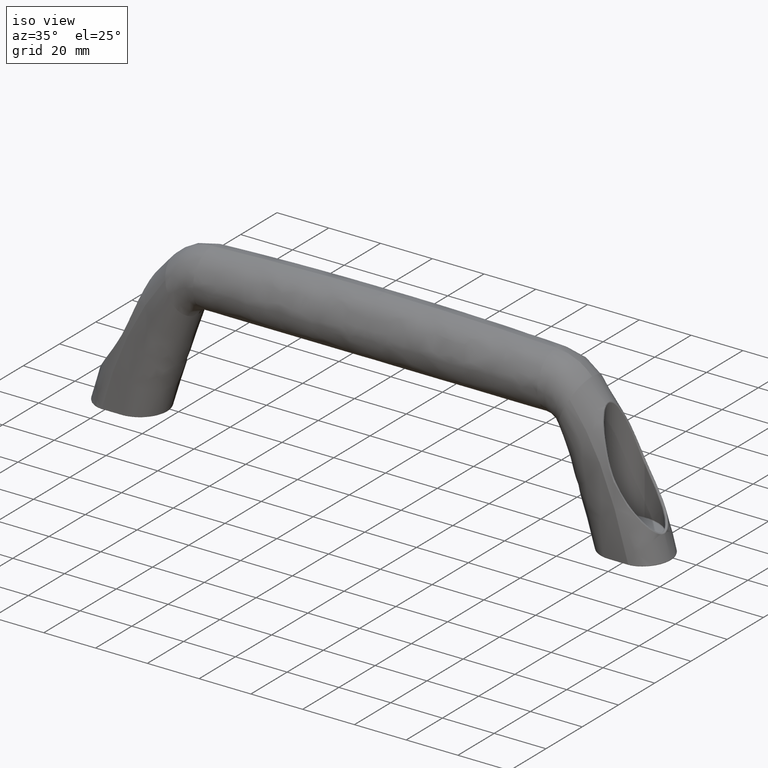
[diagram: clean part render]
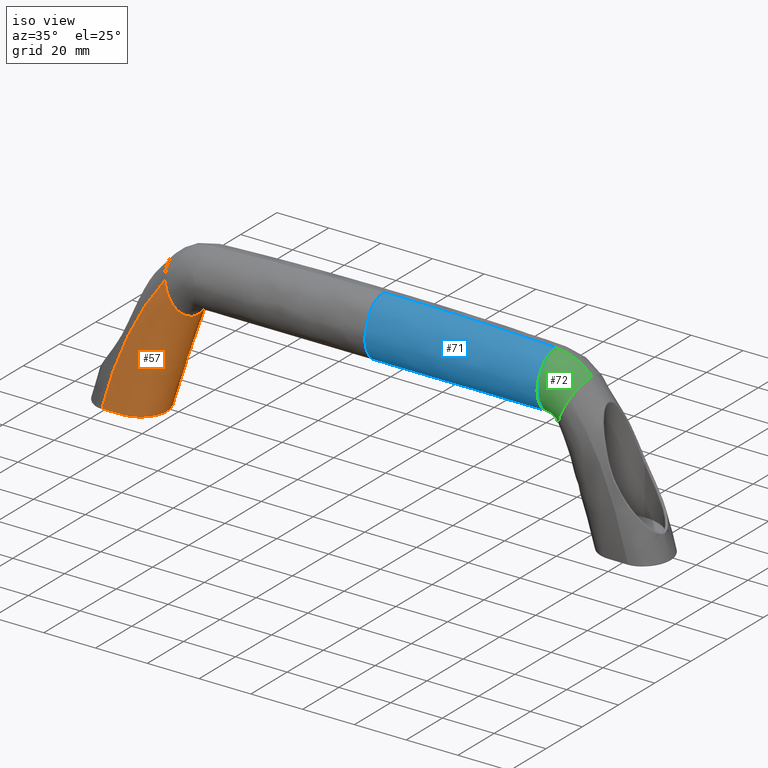
[diagram: same view with three faces highlighted in distinct colors, each labeled with its STEP entity id]
A machine part, iso view with three faces highlighted in distinct colors.
Their STEP definitions:

[orange] entity #57 — the highlighted face is a freeform B-spline surface patch.
#57=ADVANCED_FACE('',(#263),#262,.T.);
#262=( BOUNDED_SURFACE() B_SPLINE_SURFACE( 2,3,((#2288,#2289,#2290,#2291,#2292,#2293,#2294,#2295,#2296,#2297),(#2298,#2299,#2300,#2301,#2302,#2303,#2304,#2305,#2306,#2307),(#2308,#2309,#2310,#2311,#2312,#2313,#2314,#2315,#2316,#2317),(#2318,#2319,#2320,#2321,#2322,#2323,#2324,#2325,#2326,#2327),(#2328,#2329,#2330,#2331,#2332,#2333,#2334,#2335,#2336,#2337),(#2338,#2339,#2340,#2341,#2342,#2343,#2344,#2345,#2346,#2347),(#2348,#2349,#2350,#2351,#2352,#2353,#2354,#2355,#2356,#2357),(#2358,#2359,#2360,#2361,#2362,#2363,#2364,#2365,#2366,#2367),(#2368,#2369,#2370,#2371,#2372,#2373,#2374,#2375,#2376,#2377),(#2378,#2379,#2380,#2381,#2382,#2383,#2384,#2385,#2386,#2387),(#2388,#2389,#2390,#2391,#2392,#2393,#2394,#2395,#2396,#2397),(#2398,#2399,#2400,#2401,#2402,#2403,#2404,#2405,#2406,#2407),(#2408,#2409,#2410,#2411,#2412,#2413,#2414,#2415,#2416,#2417)), .UNSPECIFIED.,.F.,.F.,.F.) B_SPLINE_SURFACE_WITH_KNOTS((3,2,2,2,2,2,3),(4,2,2,2,4),(2.69771640007E+01,3.44136556726E+01,3.89422874588E+01,5.09074109169E+01,6.28725343748E+01,6.74011661612E+01,7.48376578329E+01),(0.00000000000E+00,1.29617204070E+01,2.59234408140E+01,3.88851612209E+01,5.18468816279E+01), .UNSPECIFIED. ) GEOMETRIC_REPRESENTATION_ITEM() RATIONAL_B_SPLINE_SURFACE(((1.00000000000E+00,1.00000000000E+00,1.00000000000E+00,1.00000000000E+00,1.00000000000E+00,1.00000000000E+00,1.00000000000E+00,1.00000000000E+00,1.00000000000E+00,1.00000000000E+00),(1.00000000000E+00,1.00000000000E+00,9.94848743683E-01,9.79394974732E-01,9.69092462098E-01,9.48487436831E-01,9.38184924197E-01,9.22731155246E-01,9.17579898929E-01,9.17579898929E-01),(1.00000000000E+00,1.00000000000E+00,9.96100643144E-01,9.84402572575E-01,9.76603858863E-01,9.61006431439E-01,9.53207717726E-01,9.41509647158E-01,9.37610290302E-01,9.37610290302E-01),(9.19581349364E-01,9.19581349364E-01,9.21470532682E-01,9.27138082637E-01,9.30916449273E-01,9.38473182546E-01,9.42251549182E-01,9.47919099136E-01,9.49808282454E-01,9.49808282454E-01),(8.83323225191E-01,8.83323225191E-01,8.90615523617E-01,9.12492418893E-01,9.27077015745E-01,9.56246209447E-01,9.70830806298E-01,9.92707701574E-01,1.00000000000E+00,1.00000000000E+00),(7.87525431822E-01,7.87525431822E-01,7.92516853670E-01,8.07491119213E-01,8.17473962908E-01,8.37439650298E-01,8.47422493993E-01,8.62396759536E-01,8.67388181384E-01,8.67388181384E-01),(1.00000000000E+00,1.00000000000E+00,1.00000000000E+00,1.00000000000E+00,1.00000000000E+00,1.00000000000E+00,1.00000000000E+00,1.00000000000E+00,1.00000000000E+00,1.00000000000E+00),(7.87525431827E-01,7.87525431827E-01,7.92516853674E-01,8.07491119216E-01,8.17473962911E-01,8.37439650300E-01,8.47422493994E-01,8.62396759536E-01,8.67388181384E-01,8.67388181384E-01),(8.83323225187E-01,8.83323225187E-01,8.90615523613E-01,9.12492418890E-01,9.27077015742E-01,9.56246209445E-01,9.70830806297E-01,9.92707701574E-01,1.00000000000E+00,1.00000000000E+00),(9.19581349360E-01,9.19581349360E-01,9.21470532678E-01,9.27138082633E-01,9.30916449269E-01,9.38473182542E-01,9.42251549179E-01,9.47919099133E-01,9.49808282452E-01,9.49808282452E-01),(1.00000000000E+00,1.00000000000E+00,9.96100643144E-01,9.84402572575E-01,9.76603858863E-01,9.61006431438E-01,9.53207717725E-01,9.41509647157E-01,9.37610290300E-01,9.37610290300E-01),(1.00000000000E+00,1.00000000000E+00,9.94848743683E-01,9.79394974733E-01,9.69092462099E-01,9.48487436832E-01,9.38184924199E-01,9.22731155249E-01,9.17579898932E-01,9.17579898932E-01),(1.00000000000E+00,1.00000000000E+00,1.00000000000E+00,1.00000000000E+00,1.00000000000E+00,1.00000000000E+00,1.00000000000E+00,1.00000000000E+00,1.00000000000E+00,1.00000000000E+00))) REPRESENTATION_ITEM('') SURFACE() );
#263=FACE_OUTER_BOUND('',#2418,.T.);
#2288=CARTESIAN_POINT('',(-1.96736334052E+02,2.14999780576E+01,1.80000213500E+01));
#2289=CARTESIAN_POINT('',(-1.95552521277E+02,2.14999780576E+01,2.25100063252E+01));
#2290=CARTESIAN_POINT('',(-1.94258962500E+02,2.15843471136E+01,2.69730979278E+01));
#2291=CARTESIAN_POINT('',(-1.91309206319E+02,2.18374542817E+01,3.58364975539E+01));
#2292=CARTESIAN_POINT('',(-1.89649131656E+02,2.20061923938E+01,4.02367312169E+01));
#2293=CARTESIAN_POINT('',(-1.85825658026E+02,2.23436686178E+01,4.88972462214E+01));
#2294=CARTESIAN_POINT('',(-1.83658187640E+02,2.25124067299E+01,5.31555216734E+01));
#2295=CARTESIAN_POINT('',(-1.78765596982E+02,2.27655138979E+01,6.13680995334E+01));
#2296=CARTESIAN_POINT('',(-1.76038533025E+02,2.28498829540E+01,6.53200033302E+01));
#2297=CARTESIAN_POINT('',(-1.73080688355E+02,2.28498829540E+01,6.90212025126E+01));
#2298=CARTESIAN_POINT('',(-1.93018088216E+02,2.14999780576E+01,1.80000213500E+01));
#2299=CARTESIAN_POINT('',(-1.91870480865E+02,2.14999780576E+01,2.22206845738E+01));
#2300=CARTESIAN_POINT('',(-1.90629917047E+02,2.14777214230E+01,2.64316144512E+01));
#2301=CARTESIAN_POINT('',(-1.87891242090E+02,2.14095467789E+01,3.47503076068E+01));
#2302=CARTESIAN_POINT('',(-1.86374341244E+02,2.13628890644E+01,3.88987821552E+01));
#2303=CARTESIAN_POINT('',(-1.82956940292E+02,2.12665328465E+01,4.70789526541E+01));
#2304=CARTESIAN_POINT('',(-1.81047198428E+02,2.12167675593E+01,5.11077946969E+01));
#2305=CARTESIAN_POINT('',(-1.76759956941E+02,2.11400359738E+01,5.89497631780E+01));
#2306=CARTESIAN_POINT('',(-1.74397471350E+02,2.11138844212E+01,6.27170398317E+01));
#2307=CARTESIAN_POINT('',(-1.71826009837E+02,2.11138844212E+01,6.62973823474E+01));
#2308=CARTESIAN_POINT('',(-1.89299842381E+02,2.14999780576E+01,1.80000213500E+01));
#2309=CARTESIAN_POINT('',(-1.88188947531E+02,2.14999780576E+01,2.19276414824E+01));
#2310=CARTESIAN_POINT('',(-1.86994830645E+02,2.15058117925E+01,2.58462857459E+01));
#2311=CARTESIAN_POINT('',(-1.84404930534E+02,2.15235902963E+01,3.35949703799E+01));
#2312=CARTESIAN_POINT('',(-1.82996365101E+02,2.15356792506E+01,3.74534904843E+01));
#2313=CARTESIAN_POINT('',(-1.79905858469E+02,2.15604457813E+01,4.50710894178E+01));
#2314=CARTESIAN_POINT('',(-1.78218908750E+02,2.15731329895E+01,4.88283620475E+01));
#2315=CARTESIAN_POINT('',(-1.74528122874E+02,2.15925578918E+01,5.61858888881E+01));
#2316=CARTESIAN_POINT('',(-1.72534845966E+02,2.15991405723E+01,5.97549700186E+01));
#2317=CARTESIAN_POINT('',(-1.70399827133E+02,2.15991405723E+01,6.32012384760E+01));
#2318=CARTESIAN_POINT('',(-1.87083016354E+02,2.14999780576E+01,1.80000213500E+01));
#2319=CARTESIAN_POINT('',(-1.85994532794E+02,2.14999780576E+01,2.17502374855E+01));
#2320=CARTESIAN_POINT('',(-1.84841559781E+02,2.15247576094E+01,2.54680086154E+01));
#2321=CARTESIAN_POINT('',(-1.82349728417E+02,2.15984903600E+01,3.28800209477E+01));
#2322=CARTESIAN_POINT('',(-1.81015064248E+02,2.16471467545E+01,3.65600166033E+01));
#2323=CARTESIAN_POINT('',(-1.78123827385E+02,2.17432841768E+01,4.38488730899E+01));
#2324=CARTESIAN_POINT('',(-1.76567197194E+02,2.17907746308E+01,4.74573987394E+01));
#2325=CARTESIAN_POINT('',(-1.73228498355E+02,2.18613004556E+01,5.45314426063E+01));
#2326=CARTESIAN_POINT('',(-1.71440483275E+02,2.18846220279E+01,5.80101366137E+01));
#2327=CARTESIAN_POINT('',(-1.69560788384E+02,2.18846220279E+01,6.13797434629E+01));
#2328=CARTESIAN_POINT('',(-1.85055384124E+02,2.23960947750E+01,1.80000213500E+01));
#2329=CARTESIAN_POINT('',(-1.83987560045E+02,2.23960947750E+01,2.15878405187E+01));
#2330=CARTESIAN_POINT('',(-1.82876537377E+02,2.24339505027E+01,2.51210277126E+01));
#2331=CARTESIAN_POINT('',(-1.80486859079E+02,2.25438873399E+01,3.22311802647E+01));
#2332=CARTESIAN_POINT('',(-1.79227687003E+02,2.26142960561E+01,3.57538238705E+01));
#2333=CARTESIAN_POINT('',(-1.76534777632E+02,2.27486702772E+01,4.27608275864E+01));
#2334=CARTESIAN_POINT('',(-1.75103894805E+02,2.28128293722E+01,4.62451121908E+01));
#2335=CARTESIAN_POINT('',(-1.72089154328E+02,2.29055332336E+01,5.30851144066E+01));
#2336=CARTESIAN_POINT('',(-1.70486417245E+02,2.29355331550E+01,5.64895283668E+01));
#2337=CARTESIAN_POINT('',(-1.68829556834E+02,2.29355331550E+01,5.97922904131E+01));
#2338=CARTESIAN_POINT('',(-1.78799842381E+02,2.51607458043E+01,1.80000213500E+01));
#2339=CARTESIAN_POINT('',(-1.77793496805E+02,2.51607458043E+01,2.10972639229E+01));
#2340=CARTESIAN_POINT('',(-1.76795383280E+02,2.52165121103E+01,2.41694231914E+01));
#2341=CARTESIAN_POINT('',(-1.74781133443E+02,2.53796744653E+01,3.03693965305E+01));
#2342=CARTESIAN_POINT('',(-1.73776952357E+02,2.54851285202E+01,3.34604018067E+01));
#2343=CARTESIAN_POINT('',(-1.71762403351E+02,2.56884941306E+01,3.96613249638E+01));
#2344=CARTESIAN_POINT('',(-1.70752179656E+02,2.57865833910E+01,4.27707956391E+01));
#2345=CARTESIAN_POINT('',(-1.68737503542E+02,2.59294593383E+01,4.89717193313E+01));
#2346=CARTESIAN_POINT('',(-1.67721990840E+02,2.59759884065E+01,5.20972164917E+01));
#2347=CARTESIAN_POINT('',(-1.66713986118E+02,2.59759884065E+01,5.51995329124E+01));
#2348=CARTESIAN_POINT('',(-1.78799842381E+02,3.19999780576E+01,1.80000213500E+01));
#2349=CARTESIAN_POINT('',(-1.77792644422E+02,3.19999780576E+01,2.10998872885E+01));
#2350=CARTESIAN_POINT('',(-1.76785513364E+02,3.19999780576E+01,2.41997821783E+01));
#2351=CARTESIAN_POINT('',(-1.74771286867E+02,3.19999780576E+01,3.03996502181E+01));
#2352=CARTESIAN_POINT('',(-1.73764189475E+02,3.19999780576E+01,3.34996227389E+01));
#2353=CARTESIAN_POINT('',(-1.71749948094E+02,3.19999780576E+01,3.96996090350E+01));
#2354=CARTESIAN_POINT('',(-1.70742802448E+02,3.19999780576E+01,4.27996210721E+01));
#2355=CARTESIAN_POINT('',(-1.68728437085E+02,3.19999780576E+01,4.89996166172E+01));
#2356=CARTESIAN_POINT('',(-1.67721217032E+02,3.19999780576E+01,5.20995983440E+01));
#2357=CARTESIAN_POINT('',(-1.66713986118E+02,3.19999780576E+01,5.51995329124E+01));
#2358=CARTESIAN_POINT('',(-1.78799842381E+02,3.88392103107E+01,1.80000213500E+01));
#2359=CARTESIAN_POINT('',(-1.77793496805E+02,3.88392103107E+01,2.10972639229E+01));
#2360=CARTESIAN_POINT('',(-1.76795383280E+02,3.87834440047E+01,2.41694231914E+01));
#2361=CARTESIAN_POINT('',(-1.74781133443E+02,3.86202816498E+01,3.03693965305E+01));
#2362=CARTESIAN_POINT('',(-1.73776952357E+02,3.85148275949E+01,3.34604018067E+01));
#2363=CARTESIAN_POINT('',(-1.71762403351E+02,3.83114619846E+01,3.96613249638E+01));
#2364=CARTESIAN_POINT('',(-1.70752179656E+02,3.82133727242E+01,4.27707956391E+01));
#2365=CARTESIAN_POINT('',(-1.68737503542E+02,3.80704967770E+01,4.89717193313E+01));
#2366=CARTESIAN_POINT('',(-1.67721990840E+02,3.80239677088E+01,5.20972164917E+01));
#2367=CARTESIAN_POINT('',(-1.66713986118E+02,3.80239677088E+01,5.51995329124E+01));
#2368=CARTESIAN_POINT('',(-1.85055384124E+02,4.16038613401E+01,1.80000213500E+01));
#2369=CARTESIAN_POINT('',(-1.83987560045E+02,4.16038613401E+01,2.15878405187E+01));
#2370=CARTESIAN_POINT('',(-1.82876537376E+02,4.15660056124E+01,2.51210277126E+01));
#2371=CARTESIAN_POINT('',(-1.80486859079E+02,4.14560687753E+01,3.22311802646E+01));
#2372=CARTESIAN_POINT('',(-1.79227687003E+02,4.13856600591E+01,3.57538238704E+01));
#2373=CARTESIAN_POINT('',(-1.76534777632E+02,4.12512858380E+01,4.27608275864E+01));
#2374=CARTESIAN_POINT('',(-1.75103894804E+02,4.11871267430E+01,4.62451121908E+01));
#2375=CARTESIAN_POINT('',(-1.72089154328E+02,4.10944228817E+01,5.30851144066E+01));
#2376=CARTESIAN_POINT('',(-1.70486417245E+02,4.10644229602E+01,5.64895283668E+01));
#2377=CARTESIAN_POINT('',(-1.68829556834E+02,4.10644229602E+01,5.97922904131E+01));
#2378=CARTESIAN_POINT('',(-1.87083016354E+02,4.24999780576E+01,1.80000213500E+01));
#2379=CARTESIAN_POINT('',(-1.85994532794E+02,4.24999780576E+01,2.17502374854E+01));
#2380=CARTESIAN_POINT('',(-1.84841559780E+02,4.24751985058E+01,2.54680086154E+01));
#2381=CARTESIAN_POINT('',(-1.82349728417E+02,4.24014657552E+01,3.28800209476E+01));
#2382=CARTESIAN_POINT('',(-1.81015064248E+02,4.23528093607E+01,3.65600166032E+01));
#2383=CARTESIAN_POINT('',(-1.78123827385E+02,4.22566719385E+01,4.38488730899E+01));
#2384=CARTESIAN_POINT('',(-1.76567197195E+02,4.22091814845E+01,4.74573987394E+01));
#2385=CARTESIAN_POINT('',(-1.73228498355E+02,4.21386556597E+01,5.45314426064E+01));
#2386=CARTESIAN_POINT('',(-1.71440483275E+02,4.21153340874E+01,5.80101366138E+01));
#2387=CARTESIAN_POINT('',(-1.69560788384E+02,4.21153340874E+01,6.13797434630E+01));
#2388=CARTESIAN_POINT('',(-1.89299842381E+02,4.24999780576E+01,1.80000213500E+01));
#2389=CARTESIAN_POINT('',(-1.88188947531E+02,4.24999780576E+01,2.19276414824E+01));
#2390=CARTESIAN_POINT('',(-1.86994830645E+02,4.24941443226E+01,2.58462857459E+01));
#2391=CARTESIAN_POINT('',(-1.84404930534E+02,4.24763658189E+01,3.35949703799E+01));
#2392=CARTESIAN_POINT('',(-1.82996365101E+02,4.24642768646E+01,3.74534904844E+01));
#2393=CARTESIAN_POINT('',(-1.79905858469E+02,4.24395103339E+01,4.50710894179E+01));
#2394=CARTESIAN_POINT('',(-1.78218908750E+02,4.24268231258E+01,4.88283620476E+01));
#2395=CARTESIAN_POINT('',(-1.74528122874E+02,4.24073982234E+01,5.61858888883E+01));
#2396=CARTESIAN_POINT('',(-1.72534845966E+02,4.24008155429E+01,5.97549700188E+01));
#2397=CARTESIAN_POINT('',(-1.70399827134E+02,4.24008155429E+01,6.32012384762E+01));
#2398=CARTESIAN_POINT('',(-1.93018088216E+02,4.24999780576E+01,1.80000213500E+01));
#2399=CARTESIAN_POINT('',(-1.91870480865E+02,4.24999780576E+01,2.22206845737E+01));
#2400=CARTESIAN_POINT('',(-1.90629917047E+02,4.25222346922E+01,2.64316144511E+01));
#2401=CARTESIAN_POINT('',(-1.87891242090E+02,4.25904093363E+01,3.47503076067E+01));
#2402=CARTESIAN_POINT('',(-1.86374341244E+02,4.26370670508E+01,3.88987821551E+01));
#2403=CARTESIAN_POINT('',(-1.82956940292E+02,4.27334232686E+01,4.70789526541E+01));
#2404=CARTESIAN_POINT('',(-1.81047198428E+02,4.27831885558E+01,5.11077946970E+01));
#2405=CARTESIAN_POINT('',(-1.76759956941E+02,4.28599201414E+01,5.89497631781E+01));
#2406=CARTESIAN_POINT('',(-1.74397471350E+02,4.28860716939E+01,6.27170398318E+01));
#2407=CARTESIAN_POINT('',(-1.71826009837E+02,4.28860716939E+01,6.62973823475E+01));
#2408=CARTESIAN_POINT('',(-1.96736334052E+02,4.24999780576E+01,1.80000213500E+01));
#2409=CARTESIAN_POINT('',(-1.95552521277E+02,4.24999780576E+01,2.25100063252E+01));
#2410=CARTESIAN_POINT('',(-1.94258962500E+02,4.24156090016E+01,2.69730979277E+01));
#2411=CARTESIAN_POINT('',(-1.91309206319E+02,4.21625018335E+01,3.58364975539E+01));
#2412=CARTESIAN_POINT('',(-1.89649131656E+02,4.19937637215E+01,4.02367312168E+01));
#2413=CARTESIAN_POINT('',(-1.85825658026E+02,4.16562874974E+01,4.88972462213E+01));
#2414=CARTESIAN_POINT('',(-1.83658187640E+02,4.14875493854E+01,5.31555216734E+01));
#2415=CARTESIAN_POINT('',(-1.78765596982E+02,4.12344422173E+01,6.13680995334E+01));
#2416=CARTESIAN_POINT('',(-1.76038533025E+02,4.11500731613E+01,6.53200033302E+01));
#2417=CARTESIAN_POINT('',(-1.73080688355E+02,4.11500731613E+01,6.90212025126E+01));
#2418=EDGE_LOOP('',(#4634,#4635,#4636,#4637,#4638));
#4634=ORIENTED_EDGE('',*,*,#4815,.F.);
#4635=ORIENTED_EDGE('',*,*,#4824,.F.);
#4636=ORIENTED_EDGE('',*,*,#4829,.T.);
#4637=ORIENTED_EDGE('',*,*,#4790,.F.);
#4638=ORIENTED_EDGE('',*,*,#4785,.F.);
#4785=EDGE_CURVE('',#4925,#4932,#4933,.T.);
#4790=EDGE_CURVE('',#4932,#4966,#4967,.T.);
#4815=EDGE_CURVE('',#5126,#4925,#5133,.T.);
#4824=EDGE_CURVE('',#5184,#5126,#5191,.T.);
#4829=EDGE_CURVE('',#5184,#4966,#5225,.T.);
#4925=VERTEX_POINT('',#5739);
#4932=VERTEX_POINT('',#5744);
#4933=(BOUNDED_CURVE() B_SPLINE_CURVE(3,(#5745,#5746,#5747,#5748,#5749,#5750,#5751,#5752,#5753,#5754,#5755,#5756,#5757),.UNSPECIFIED.,.F.,.F.) B_SPLINE_CURVE_WITH_KNOTS((4,3,3,3,4),(0.00000000000E+00,1.43215665804E+01,2.86206188286E+01,4.27354945419E+01,5.65111563791E+01),.UNSPECIFIED.) CURVE() GEOMETRIC_REPRESENTATION_ITEM() RATIONAL_B_SPLINE_CURVE((1.00000000000E+00,1.00000000000E+00,1.00000000000E+00,1.00000000000E+00,1.00000000000E+00,1.00000000000E+00,1.00000000000E+00,1.00000000000E+00,1.00000000000E+00,1.00000000000E+00,1.00000000000E+00,1.00000000000E+00,1.00000000000E+00)) REPRESENTATION_ITEM('') );
#4966=VERTEX_POINT('',#5800);
#4967=(BOUNDED_CURVE() B_SPLINE_CURVE(3,(#5801,#5802,#5803,#5804,#5805,#5806,#5807,#5808,#5809,#5810,#5811,#5812,#5813,#5814,#5815,#5816,#5817,#5818,#5819,#5820,#5821,#5822,#5823,#5824,#5825,#5826,#5827,#5828,#5829,#5830,#5831,#5832,#5833,#5834,#5835,#5836,#5837,#5838,#5839,#5840,#5841,#5842,#5843,#5844,#5845,#5846,#5847,#5848,#5849,#5850,#5851,#5852,#5853,#5854,#5855,#5856,#5857,#5858,#5859,#5860),.UNSPECIFIED.,.F.,.F.) B_SPLINE_CURVE_WITH_KNOTS((4,2,2,2,2,2,2,2,2,2,2,2,1,2,2,2,2,2,2,2,2,2,2,2,2,2,2,2,2,1,4),(0.00000000000E+00,5.98646604156E+00,6.73477429675E+00,7.48308255194E+00,8.97969906233E+00,1.19729320831E+01,1.34695485935E+01,1.49661651039E+01,1.64627816143E+01,1.79593981247E+01,1.87077063799E+01,1.94560146350E+01,2.09526311454E+01,2.24492476559E+01,2.31975559111E+01,2.39458641663E+01,2.54424806766E+01,2.69390971870E+01,2.84357136974E+01,2.99323302077E+01,3.29255632286E+01,3.36738714838E+01,3.44221797390E+01,3.59187962493E+01,3.66671045045E+01,3.74154127597E+01,3.89120292701E+01,4.04086457805E+01,4.11569540357E+01,4.19052622909E+01,4.78917283324E+01),.UNSPECIFIED.) CURVE() GEOMETRIC_REPRESENTATION_ITEM() RATIONAL_B_SPLINE_CURVE((1.00000000000E+00,1.00000000000E+00,1.00000000000E+00,1.00000000000E+00,1.00000000000E+00,1.00000000000E+00,1.00000000000E+00,1.00000000000E+00,1.00000000000E+00,1.00000000000E+00,1.00000000000E+00,1.00000000000E+00,1.00000000000E+00,1.00000000000E+00,1.00000000000E+00,1.00000000000E+00,1.00000000000E+00,1.00000000000E+00,1.00000000000E+00,1.00000000000E+00,1.00000000000E+00,1.00000000000E+00,1.00000000000E+00,1.00000000000E+00,1.00000000000E+00,1.00000000000E+00,1.00000000000E+00,1.00000000000E+00,1.00000000000E+00,1.00000000000E+00,1.00000000000E+00,1.00000000000E+00,1.00000000000E+00,1.00000000000E+00,1.00000000000E+00,1.00000000000E+00,1.00000000000E+00,1.00000000000E+00,1.00000000000E+00,1.00000000000E+00,1.00000000000E+00,1.00000000000E+00,1.00000000000E+00,1.00000000000E+00,1.00000000000E+00,1.00000000000E+00,1.00000000000E+00,1.00000000000E+00,1.00000000000E+00,1.00000000000E+00,1.00000000000E+00,1.00000000000E+00,1.00000000000E+00,1.00000000000E+00,1.00000000000E+00,1.00000000000E+00,1.00000000000E+00,1.00000000000E+00,1.00000000000E+00,1.00000000000E+00)) REPRESENTATION_ITEM('') );
#5126=VERTEX_POINT('',#6352);
#5133=(BOUNDED_CURVE() B_SPLINE_CURVE(2,(#6369,#6370,#6371,#6372,#6373),.UNSPECIFIED.,.F.,.F.) B_SPLINE_CURVE_WITH_KNOTS((3,2,3),(-2.37224876083E+01,-1.17982073668E+01,0.00000000000E+00),.UNSPECIFIED.) CURVE() GEOMETRIC_REPRESENTATION_ITEM() RATIONAL_B_SPLINE_CURVE((1.00000000000E+00,8.67388181384E-01,1.00000000000E+00,8.67388181384E-01,1.00000000000E+00)) REPRESENTATION_ITEM('') );
#5184=VERTEX_POINT('',#6530);
#5191=(BOUNDED_CURVE() B_SPLINE_CURVE(2,(#6536,#6537,#6538,#6539,#6540),.UNSPECIFIED.,.F.,.F.) B_SPLINE_CURVE_WITH_KNOTS((3,2,3),(-2.37224876083E+01,-1.19242802415E+01,0.00000000000E+00),.UNSPECIFIED.) CURVE() GEOMETRIC_REPRESENTATION_ITEM() RATIONAL_B_SPLINE_CURVE((1.00000000000E+00,8.67388181384E-01,1.00000000000E+00,8.67388181384E-01,1.00000000000E+00)) REPRESENTATION_ITEM('') );
#5225=(BOUNDED_CURVE() B_SPLINE_CURVE(3,(#6561,#6562,#6563,#6564,#6565,#6566,#6567,#6568,#6569,#6570,#6571,#6572,#6573),.UNSPECIFIED.,.F.,.F.) B_SPLINE_CURVE_WITH_KNOTS((4,3,3,3,4),(0.00000000000E+00,1.43215665804E+01,2.86206188287E+01,4.27354945419E+01,5.65111564199E+01),.UNSPECIFIED.) CURVE() GEOMETRIC_REPRESENTATION_ITEM() RATIONAL_B_SPLINE_CURVE((1.00000000000E+00,1.00000000000E+00,1.00000000000E+00,1.00000000000E+00,1.00000000000E+00,1.00000000000E+00,1.00000000000E+00,1.00000000000E+00,1.00000000000E+00,1.00000000000E+00,1.00000000000E+00,1.00000000000E+00,1.00000000000E+00)) REPRESENTATION_ITEM('') );
#5739=CARTESIAN_POINT('',(-1.73080688355E+02,4.11500731613E+01,6.90212025126E+01));
#5744=CARTESIAN_POINT('',(-1.96683727106E+02,4.24999228097E+01,1.82001325519E+01));
#5745=CARTESIAN_POINT('',(-1.73080688355E+02,4.11500731613E+01,6.90212025126E+01));
#5746=CARTESIAN_POINT('',(-1.76038533025E+02,4.11500731613E+01,6.53200033302E+01));
#5747=CARTESIAN_POINT('',(-1.78765596982E+02,4.12344422173E+01,6.13680995334E+01));
#5748=CARTESIAN_POINT('',(-1.81211892311E+02,4.13609958014E+01,5.72618106034E+01));
#5749=CARTESIAN_POINT('',(-1.83658187640E+02,4.14875493854E+01,5.31555216734E+01));
#5750=CARTESIAN_POINT('',(-1.85825658026E+02,4.16562874974E+01,4.88972462213E+01));
#5751=CARTESIAN_POINT('',(-1.87737394841E+02,4.18250256095E+01,4.45669887191E+01));
#5752=CARTESIAN_POINT('',(-1.89649131656E+02,4.19937637215E+01,4.02367312168E+01));
#5753=CARTESIAN_POINT('',(-1.91309206319E+02,4.21625018335E+01,3.58364975539E+01));
#5754=CARTESIAN_POINT('',(-1.92784084410E+02,4.22890554176E+01,3.14047977408E+01));
#5755=CARTESIAN_POINT('',(-1.94237145357E+02,4.24137369570E+01,2.70386538724E+01));
#5756=CARTESIAN_POINT('',(-1.95514211650E+02,4.24974727674E+01,2.26420400718E+01));
#5757=CARTESIAN_POINT('',(-1.96683727106E+02,4.24999228097E+01,1.82001325519E+01));
#5800=CARTESIAN_POINT('',(-1.96683727116E+02,2.15000333055E+01,1.82001325126E+01));
#5801=CARTESIAN_POINT('',(-1.96683727106E+02,4.24999228097E+01,1.82001325519E+01));
#5802=CARTESIAN_POINT('',(-1.94684633369E+02,4.24999565219E+01,1.82000650783E+01));
#5803=CARTESIAN_POINT('',(-1.92685539693E+02,4.24999788576E+01,1.82000201746E+01));
#5804=CARTESIAN_POINT('',(-1.90436559451E+02,4.24999779337E+01,1.82000215189E+01));
#5805=CARTESIAN_POINT('',(-1.90186672759E+02,4.24999774578E+01,1.82000224111E+01));
#5806=CARTESIAN_POINT('',(-1.89686899381E+02,4.24999756911E+01,1.82000258163E+01));
#5807=CARTESIAN_POINT('',(-1.89437003769E+02,4.25011612317E+01,1.82010766608E+01));
#5808=CARTESIAN_POINT('',(-1.88687374241E+02,4.24971455189E+01,1.81970325724E+01));
#5809=CARTESIAN_POINT('',(-1.88184713663E+02,4.24583162578E+01,1.81942748566E+01));
#5810=CARTESIAN_POINT('',(-1.86704049772E+02,4.22365926328E+01,1.81860273947E+01));
#5811=CARTESIAN_POINT('',(-1.85755192855E+02,4.19532173890E+01,1.81805775041E+01));
#5812=CARTESIAN_POINT('',(-1.84390062336E+02,4.13220621928E+01,1.81725689733E+01));
#5813=CARTESIAN_POINT('',(-1.83952877248E+02,4.10802494196E+01,1.81699757354E+01));
#5814=CARTESIAN_POINT('',(-1.83121731386E+02,4.05408184482E+01,1.81650068845E+01));
#5815=CARTESIAN_POINT('',(-1.82726268166E+02,4.02425040638E+01,1.81626224178E+01));
#5816=CARTESIAN_POINT('',(-1.81976126125E+02,3.95878738691E+01,1.81580735358E+01));
#5817=CARTESIAN_POINT('',(-1.81620255583E+02,3.92293933101E+01,1.81559016660E+01));
#5818=CARTESIAN_POINT('',(-1.80971857599E+02,3.84756973411E+01,1.81519295170E+01));
#5819=CARTESIAN_POINT('',(-1.80676366840E+02,3.80783344256E+01,1.81501113164E+01));
#5820=CARTESIAN_POINT('',(-1.80275820185E+02,3.74517840727E+01,1.81476411783E+01));
#5821=CARTESIAN_POINT('',(-1.80149446077E+02,3.72378306669E+01,1.81468607829E+01));
#5822=CARTESIAN_POINT('',(-1.79911245404E+02,3.67995281520E+01,1.81453884650E+01));
#5823=CARTESIAN_POINT('',(-1.79799022475E+02,3.65742414445E+01,1.81446940853E+01));
#5824=CARTESIAN_POINT('',(-1.79488752746E+02,3.58910759073E+01,1.81427729923E+01));
#5825=CARTESIAN_POINT('',(-1.79144006860E+02,3.49601078709E+01,1.81406349537E+01));
#5826=CARTESIAN_POINT('',(-1.78932930112E+02,3.39902090452E+01,1.81393241327E+01));
#5827=CARTESIAN_POINT('',(-1.78826251224E+02,3.32477482072E+01,1.81386615727E+01));
#5828=CARTESIAN_POINT('',(-1.78799388083E+02,3.29974300667E+01,1.81384947036E+01));
#5829=CARTESIAN_POINT('',(-1.78763859484E+02,3.24997062434E+01,1.81382740005E+01));
#5830=CARTESIAN_POINT('',(-1.78755021163E+02,3.22513208392E+01,1.81382190923E+01));
#5831=CARTESIAN_POINT('',(-1.78754778885E+02,3.15075671764E+01,1.81382175847E+01));
#5832=CARTESIAN_POINT('',(-1.78789517762E+02,3.10135945357E+01,1.81384334226E+01));
#5833=CARTESIAN_POINT('',(-1.78929310188E+02,3.00294029563E+01,1.81393016454E+01));
#5834=CARTESIAN_POINT('',(-1.79035705006E+02,2.95356790533E+01,1.81399623798E+01));
#5835=CARTESIAN_POINT('',(-1.79314433067E+02,2.85796162737E+01,1.81416918636E+01));
#5836=CARTESIAN_POINT('',(-1.79486544301E+02,2.81150487629E+01,1.81427592753E+01));
#5837=CARTESIAN_POINT('',(-1.79895301484E+02,2.72124469168E+01,1.81452902246E+01));
#5838=CARTESIAN_POINT('',(-1.80132695882E+02,2.67732311571E+01,1.81467584462E+01));
#5839=CARTESIAN_POINT('',(-1.80941432905E+02,2.55046836603E+01,1.81517460832E+01));
#5840=CARTESIAN_POINT('',(-1.81587138686E+02,2.47537898342E+01,1.81557140209E+01));
#5841=CARTESIAN_POINT('',(-1.82525603416E+02,2.39320297931E+01,1.81614057081E+01));
#5842=CARTESIAN_POINT('',(-1.82720815681E+02,2.37730461842E+01,1.81625861730E+01));
#5843=CARTESIAN_POINT('',(-1.83119614894E+02,2.34713962450E+01,1.81649888986E+01));
#5844=CARTESIAN_POINT('',(-1.83323363880E+02,2.33284766759E+01,1.81662121756E+01));
#5845=CARTESIAN_POINT('',(-1.83947359986E+02,2.29228906822E+01,1.81699429109E+01));
#5846=CARTESIAN_POINT('',(-1.84380293932E+02,2.26832837007E+01,1.81725110047E+01));
#5847=CARTESIAN_POINT('',(-1.85055080490E+02,2.23700137510E+01,1.81764705609E+01));
#5848=CARTESIAN_POINT('',(-1.85284256000E+02,2.22733090837E+01,1.81778080563E+01));
#5849=CARTESIAN_POINT('',(-1.85751292367E+02,2.20956860709E+01,1.81805173891E+01));
#5850=CARTESIAN_POINT('',(-1.85989765607E+02,2.20146529085E+01,1.81818926585E+01));
#5851=CARTESIAN_POINT('',(-1.86706959073E+02,2.17992630138E+01,1.81860016098E+01));
#5852=CARTESIAN_POINT('',(-1.87190776002E+02,2.16910164730E+01,1.81887378568E+01));
#5853=CARTESIAN_POINT('',(-1.88169492326E+02,2.15433928457E+01,1.81941906374E+01));
#5854=CARTESIAN_POINT('',(-1.88664391237E+02,2.15040127534E+01,1.81969071807E+01));
#5855=CARTESIAN_POINT('',(-1.89415343015E+02,2.14984063546E+01,1.82009604042E+01));
#5856=CARTESIAN_POINT('',(-1.89666226599E+02,2.14999805197E+01,1.82000259629E+01));
#5857=CARTESIAN_POINT('',(-1.90167476647E+02,2.14999787044E+01,1.82000224609E+01));
#5858=CARTESIAN_POINT('',(-1.92423101862E+02,2.14999743247E+01,1.82000142391E+01));
#5859=CARTESIAN_POINT('',(-1.94678727076E+02,2.14999994937E+01,1.82000648397E+01));
#5860=CARTESIAN_POINT('',(-1.96683727116E+02,2.15000333055E+01,1.82001325126E+01));
#6352=CARTESIAN_POINT('',(-1.66713986118E+02,3.19999780576E+01,5.51995329124E+01));
#6369=CARTESIAN_POINT('',(-1.66713986118E+02,3.19999780576E+01,5.51995329124E+01));
#6370=CARTESIAN_POINT('',(-1.66713986118E+02,3.80239677088E+01,5.51995329124E+01));
#6371=CARTESIAN_POINT('',(-1.68829556834E+02,4.10644229602E+01,5.97922904131E+01));
#6372=CARTESIAN_POINT('',(-1.70945127550E+02,4.41048782117E+01,6.43850479139E+01));
#6373=CARTESIAN_POINT('',(-1.73080688355E+02,4.11500731613E+01,6.90212025126E+01));
#6530=CARTESIAN_POINT('',(-1.73080688355E+02,2.28498829540E+01,6.90212025126E+01));
#6536=CARTESIAN_POINT('',(-1.73080688355E+02,2.28498829540E+01,6.90212025126E+01));
#6537=CARTESIAN_POINT('',(-1.70945127550E+02,1.98950779035E+01,6.43850479139E+01));
#6538=CARTESIAN_POINT('',(-1.68829556834E+02,2.29355331550E+01,5.97922904131E+01));
#6539=CARTESIAN_POINT('',(-1.66713986118E+02,2.59759884065E+01,5.51995329124E+01));
#6540=CARTESIAN_POINT('',(-1.66713986118E+02,3.19999780576E+01,5.51995329124E+01));
#6561=CARTESIAN_POINT('',(-1.73080688355E+02,2.28498829540E+01,6.90212025126E+01));
#6562=CARTESIAN_POINT('',(-1.76038533025E+02,2.28498829540E+01,6.53200033302E+01));
#6563=CARTESIAN_POINT('',(-1.78765596982E+02,2.27655138979E+01,6.13680995334E+01));
#6564=CARTESIAN_POINT('',(-1.81211892311E+02,2.26389603139E+01,5.72618106034E+01));
#6565=CARTESIAN_POINT('',(-1.83658187640E+02,2.25124067299E+01,5.31555216734E+01));
#6566=CARTESIAN_POINT('',(-1.85825658026E+02,2.23436686178E+01,4.88972462214E+01));
#6567=CARTESIAN_POINT('',(-1.87737394841E+02,2.21749305058E+01,4.45669887191E+01));
#6568=CARTESIAN_POINT('',(-1.89649131656E+02,2.20061923938E+01,4.02367312169E+01));
#6569=CARTESIAN_POINT('',(-1.91309206319E+02,2.18374542817E+01,3.58364975539E+01));
#6570=CARTESIAN_POINT('',(-1.92784084410E+02,2.17109006977E+01,3.14047977409E+01));
#6571=CARTESIAN_POINT('',(-1.94237145362E+02,2.15862191579E+01,2.70386538595E+01));
#6572=CARTESIAN_POINT('',(-1.95514211658E+02,2.15024833473E+01,2.26420400459E+01));
#6573=CARTESIAN_POINT('',(-1.96683727116E+02,2.15000333055E+01,1.82001325126E+01));

[blue] entity #71 — the highlighted face is a freeform B-spline surface patch.
#71=ADVANCED_FACE('',(#405),#404,.T.);
#404=( BOUNDED_SURFACE() B_SPLINE_SURFACE( 3,2,((#3916,#3917,#3918),(#3919,#3920,#3921),(#3922,#3923,#3924),(#3925,#3926,#3927),(#3928,#3929,#3930),(#3931,#3932,#3933),(#3934,#3935,#3936),(#3937,#3938,#3939),(#3940,#3941,#3942),(#3943,#3944,#3945),(#3946,#3947,#3948),(#3949,#3950,#3951),(#3952,#3953,#3954),(#3955,#3956,#3957),(#3958,#3959,#3960),(#3961,#3962,#3963),(#3964,#3965,#3966),(#3967,#3968,#3969),(#3970,#3971,#3972),(#3973,#3974,#3975),(#3976,#3977,#3978),(#3979,#3980,#3981),(#3982,#3983,#3984),(#3985,#3986,#3987),(#3988,#3989,#3990),(#3991,#3992,#3993),(#3994,#3995,#3996),(#3997,#3998,#3999),(#4000,#4001,#4002),(#4003,#4004,#4005),(#4006,#4007,#4008),(#4009,#4010,#4011),(#4012,#4013,#4014),(#4015,#4016,#4017),(#4018,#4019,#4020),(#4021,#4022,#4023),(#4024,#4025,#4026),(#4027,#4028,#4029),(#4030,#4031,#4032),(#4033,#4034,#4035),(#4036,#4037,#4038),(#4039,#4040,#4041),(#4042,#4043,#4044),(#4045,#4046,#4047),(#4048,#4049,#4050),(#4051,#4052,#4053),(#4054,#4055,#4056),(#4057,#4058,#4059)), .UNSPECIFIED.,.F.,.F.,.F.) B_SPLINE_SURFACE_WITH_KNOTS((4,2,2,2,2,2,2,2,2,2,2,2,2,2,2,2,2,2,2,2,2,2,2,4),(3,3),(-1.05471187339E-14,2.12223159148E+00,3.18334738723E+00,4.24446318297E+00,6.36669477446E+00,8.48892636594E+00,9.55004216168E+00,1.00806000596E+01,1.06111579574E+01,1.11417158553E+01,1.16722737532E+01,1.27333895489E+01,1.37945053447E+01,1.43250632425E+01,1.48556211404E+01,1.69778527319E+01,1.91000843234E+01,2.12223159149E+01,2.33445475063E+01,2.54667790978E+01,2.75890106893E+01,2.97112422808E+01,3.18334738723E+01,3.39557054638E+01),(-6.68064571995E+01,-3.00126156158E-01), .UNSPECIFIED. ) GEOMETRIC_REPRESENTATION_ITEM() RATIONAL_B_SPLINE_SURFACE(((1.00000000000E+00,9.99738862680E-01,1.00000000000E+00),(1.00000000000E+00,9.99738862680E-01,1.00000000000E+00),(1.00000000000E+00,9.99738862680E-01,1.00000000000E+00),(1.00000000000E+00,9.99738862680E-01,1.00000000000E+00),(1.00000000000E+00,9.99738862680E-01,1.00000000000E+00),(1.00000000000E+00,9.99738862680E-01,1.00000000000E+00),(1.00000000000E+00,9.99738862680E-01,1.00000000000E+00),(1.00000000000E+00,9.99738862680E-01,1.00000000000E+00),(1.00000000000E+00,9.99738862680E-01,1.00000000000E+00),(1.00000000000E+00,9.99738862680E-01,1.00000000000E+00),(1.00000000000E+00,9.99738862680E-01,1.00000000000E+00),(1.00000000000E+00,9.99738862680E-01,1.00000000000E+00),(1.00000000000E+00,9.99738862680E-01,1.00000000000E+00),(1.00000000000E+00,9.99738862680E-01,1.00000000000E+00),(1.00000000000E+00,9.99738862680E-01,1.00000000000E+00),(1.00000000000E+00,9.99738862680E-01,1.00000000000E+00),(1.00000000000E+00,9.99738862680E-01,1.00000000000E+00),(1.00000000000E+00,9.99738862680E-01,1.00000000000E+00),(1.00000000000E+00,9.99738862680E-01,1.00000000000E+00),(1.00000000000E+00,9.99738862680E-01,1.00000000000E+00),(1.00000000000E+00,9.99738862680E-01,1.00000000000E+00),(1.00000000000E+00,9.99738862680E-01,1.00000000000E+00),(1.00000000000E+00,9.99738862680E-01,1.00000000000E+00),(1.00000000000E+00,9.99738862680E-01,1.00000000000E+00),(1.00000000000E+00,9.99738862680E-01,1.00000000000E+00),(1.00000000000E+00,9.99738862680E-01,1.00000000000E+00),(1.00000000000E+00,9.99738862680E-01,1.00000000000E+00),(1.00000000000E+00,9.99738862680E-01,1.00000000000E+00),(1.00000000000E+00,9.99738862680E-01,1.00000000000E+00),(1.00000000000E+00,9.99738862680E-01,1.00000000000E+00),(1.00000000000E+00,9.99738862680E-01,1.00000000000E+00),(1.00000000000E+00,9.99738862680E-01,1.00000000000E+00),(1.00000000000E+00,9.99738862680E-01,1.00000000000E+00),(1.00000000000E+00,9.99738862680E-01,1.00000000000E+00),(1.00000000000E+00,9.99738862680E-01,1.00000000000E+00),(1.00000000000E+00,9.99738862680E-01,1.00000000000E+00),(1.00000000000E+00,9.99738862680E-01,1.00000000000E+00),(1.00000000000E+00,9.99738862680E-01,1.00000000000E+00),(1.00000000000E+00,9.99738862680E-01,1.00000000000E+00),(1.00000000000E+00,9.99738862680E-01,1.00000000000E+00),(1.00000000000E+00,9.99738862680E-01,1.00000000000E+00),(1.00000000000E+00,9.99738862680E-01,1.00000000000E+00),(1.00000000000E+00,9.99738862680E-01,1.00000000000E+00),(1.00000000000E+00,9.99738862680E-01,1.00000000000E+00),(1.00000000000E+00,9.99738862680E-01,1.00000000000E+00),(1.00000000000E+00,9.99738862680E-01,1.00000000000E+00),(1.00000000000E+00,9.99738862680E-01,1.00000000000E+00),(1.00000000000E+00,9.99738862680E-01,1.00000000000E+00))) REPRESENTATION_ITEM('') SURFACE() );
#405=FACE_OUTER_BOUND('',#4060,.T.);
#3916=CARTESIAN_POINT('',(-9.50000002833E+01,3.19999780576E+01,8.19999780579E+01));
#3917=CARTESIAN_POINT('',(-6.17410442048E+01,3.19999780576E+01,8.19999959347E+01));
#3918=CARTESIAN_POINT('',(-2.85168233923E+01,3.19999780576E+01,8.04803542570E+01));
#3919=CARTESIAN_POINT('',(-9.50000002833E+01,3.12794216443E+01,8.19984797793E+01));
#3920=CARTESIAN_POINT('',(-6.17410889938E+01,3.12389959268E+01,8.20004935405E+01));
#3921=CARTESIAN_POINT('',(-2.85168233923E+01,3.13058008338E+01,8.04828078995E+01));
#3922=CARTESIAN_POINT('',(-9.50000002802E+01,3.05589592705E+01,8.19194200763E+01));
#3923=CARTESIAN_POINT('',(-6.17413237792E+01,3.04778703658E+01,8.19170652652E+01));
#3924=CARTESIAN_POINT('',(-2.85168233923E+01,3.06112327835E+01,8.04124593572E+01));
#3925=CARTESIAN_POINT('',(-9.50000002713E+01,2.95034354943E+01,8.16865797340E+01));
#3926=CARTESIAN_POINT('',(-6.17419341554E+01,2.93645330853E+01,8.16695225473E+01));
#3927=CARTESIAN_POINT('',(-2.85168233923E+01,2.95918996800E+01,8.01999733900E+01));
#3928=CARTESIAN_POINT('',(-9.50000002677E+01,2.91554229287E+01,8.15911673417E+01));
#3929=CARTESIAN_POINT('',(-6.17421650025E+01,2.89979581991E+01,8.15674015151E+01));
#3930=CARTESIAN_POINT('',(-2.85168233923E+01,2.92558237480E+01,8.01114044875E+01));
#3931=CARTESIAN_POINT('',(-9.50000002591E+01,2.84736304454E+01,8.13577254357E+01));
#3932=CARTESIAN_POINT('',(-6.17427969602E+01,2.82755710807E+01,8.13194295160E+01));
#3933=CARTESIAN_POINT('',(-2.85168233923E+01,2.85946113478E+01,7.98995833589E+01));
#3934=CARTESIAN_POINT('',(-9.50000002542E+01,2.81397168842E+01,8.12205854367E+01));
#3935=CARTESIAN_POINT('',(-6.17431739590E+01,2.79224121934E+01,8.11748565673E+01));
#3936=CARTESIAN_POINT('',(-2.85168233923E+01,2.82696754090E+01,7.97763998236E+01));
#3937=CARTESIAN_POINT('',(-9.50000002376E+01,2.71663837959E+01,8.07507682275E+01));
#3938=CARTESIAN_POINT('',(-6.17444817098E+01,2.68914046267E+01,8.06818120955E+01));
#3939=CARTESIAN_POINT('',(-2.85168233923E+01,2.73165113552E+01,7.93569322592E+01));
#3940=CARTESIAN_POINT('',(-9.50000002242E+01,2.65551719371E+01,8.03590509425E+01));
#3941=CARTESIAN_POINT('',(-6.17455843914E+01,2.62433725674E+01,8.02738103768E+01));
#3942=CARTESIAN_POINT('',(-2.85168233923E+01,2.67104943685E+01,7.90104847362E+01));
#3943=CARTESIAN_POINT('',(-9.50000001935E+01,2.54437630421E+01,7.94417668059E+01));
#3944=CARTESIAN_POINT('',(-6.17480887670E+01,2.50600776624E+01,7.93235061325E+01));
#3945=CARTESIAN_POINT('',(-2.85168233923E+01,2.55837212883E+01,7.81993543209E+01));
#3946=CARTESIAN_POINT('',(-9.50000001760E+01,2.49432495268E+01,7.89159680986E+01));
#3947=CARTESIAN_POINT('',(-6.17494892408E+01,2.45246574801E+01,7.87811136714E+01));
#3948=CARTESIAN_POINT('',(-2.85168233923E+01,2.50629041984E+01,7.77346362453E+01));
#3949=CARTESIAN_POINT('',(-9.50000001477E+01,2.42973414306E+01,7.80493291240E+01));
#3950=CARTESIAN_POINT('',(-6.17516715851E+01,2.38263632717E+01,7.78898023185E+01));
#3951=CARTESIAN_POINT('',(-2.85168233923E+01,2.43625521304E+01,7.69639394867E+01));
#3952=CARTESIAN_POINT('',(-9.50000001378E+01,2.40993491563E+01,7.77475699806E+01));
#3953=CARTESIAN_POINT('',(-6.17524109851E+01,2.36109479570E+01,7.75798996548E+01));
#3954=CARTESIAN_POINT('',(-2.85168233923E+01,2.41424796210E+01,7.66947960080E+01));
#3955=CARTESIAN_POINT('',(-9.50000001225E+01,2.38306300891E+01,7.72786684054E+01));
#3956=CARTESIAN_POINT('',(-6.17535271479E+01,2.33157966067E+01,7.70987276966E+01));
#3957=CARTESIAN_POINT('',(-2.85168233923E+01,2.38344819566E+01,7.62751847369E+01));
#3958=CARTESIAN_POINT('',(-9.50000001173E+01,2.37455832893E+01,7.71197274241E+01));
#3959=CARTESIAN_POINT('',(-6.17538884518E+01,2.32223078881E+01,7.69362581097E+01));
#3960=CARTESIAN_POINT('',(-2.85168233923E+01,2.37354063091E+01,7.61325003950E+01));
#3961=CARTESIAN_POINT('',(-9.50000001068E+01,2.35859637916E+01,7.67967395307E+01));
#3962=CARTESIAN_POINT('',(-6.17546645258E+01,2.30435746614E+01,7.66033306675E+01));
#3963=CARTESIAN_POINT('',(-2.85168233923E+01,2.35448605166E+01,7.58424523800E+01));
#3964=CARTESIAN_POINT('',(-9.50000001015E+01,2.35102182183E+01,7.66332210063E+01));
#3965=CARTESIAN_POINT('',(-6.17549574968E+01,2.29618576635E+01,7.64401197460E+01));
#3966=CARTESIAN_POINT('',(-2.85168233923E+01,2.34536132264E+01,7.56946756576E+01));
#3967=CARTESIAN_POINT('',(-9.50000000906E+01,2.33594510847E+01,7.63059610500E+01));
#3968=CARTESIAN_POINT('',(-6.17554147260E+01,2.28042443853E+01,7.61159456424E+01));
#3969=CARTESIAN_POINT('',(-2.85168233923E+01,2.32776621388E+01,7.53955562180E+01));
#3970=CARTESIAN_POINT('',(-9.50000000851E+01,2.32858021580E+01,7.61415803859E+01));
#3971=CARTESIAN_POINT('',(-6.17556332435E+01,2.27272202170E+01,7.59545251004E+01));
#3972=CARTESIAN_POINT('',(-2.85168233923E+01,2.31900053070E+01,7.52456360170E+01));
#3973=CARTESIAN_POINT('',(-9.50000000740E+01,2.31412334606E+01,7.58115327083E+01));
#3974=CARTESIAN_POINT('',(-6.17560881583E+01,2.25749384885E+01,7.56290421515E+01));
#3975=CARTESIAN_POINT('',(-2.85168233923E+01,2.30167552287E+01,7.49449537659E+01));
#3976=CARTESIAN_POINT('',(-9.50000000684E+01,2.30704503550E+01,7.56458294391E+01));
#3977=CARTESIAN_POINT('',(-6.17562915492E+01,2.25008851805E+01,7.54675938847E+01));
#3978=CARTESIAN_POINT('',(-2.85168233923E+01,2.29307978281E+01,7.47941422074E+01));
#3979=CARTESIAN_POINT('',(-9.50000000513E+01,2.28626207065E+01,7.51469852223E+01));
#3980=CARTESIAN_POINT('',(-6.17570656027E+01,2.22767006285E+01,7.49694350766E+01));
#3981=CARTESIAN_POINT('',(-2.85168233923E+01,2.26757031613E+01,7.43402983717E+01));
#3982=CARTESIAN_POINT('',(-9.50000000397E+01,2.27300460534E+01,7.48118870230E+01));
#3983=CARTESIAN_POINT('',(-6.17574823773E+01,2.21377945798E+01,7.46303508348E+01));
#3984=CARTESIAN_POINT('',(-2.85168233923E+01,2.25207280582E+01,7.40291934025E+01));
#3985=CARTESIAN_POINT('',(-9.50000000161E+01,2.24770657582E+01,7.41371616726E+01));
#3986=CARTESIAN_POINT('',(-6.17580808657E+01,2.18841118314E+01,7.39453736654E+01));
#3987=CARTESIAN_POINT('',(-2.85168233923E+01,2.22422924199E+01,7.33932870432E+01));
#3988=CARTESIAN_POINT('',(-9.50000000041E+01,2.23566658560E+01,7.37975715786E+01));
#3989=CARTESIAN_POINT('',(-6.17582742026E+01,2.17689178360E+01,7.35985671680E+01));
#3990=CARTESIAN_POINT('',(-2.85168233923E+01,2.21188450842E+01,7.30683757834E+01));
#3991=CARTESIAN_POINT('',(-9.49999999859E+01,2.21852665788E+01,7.32849452964E+01));
#3992=CARTESIAN_POINT('',(-6.17584261534E+01,2.16141377817E+01,7.30736441334E+01));
#3993=CARTESIAN_POINT('',(-2.85168233923E+01,2.19582785414E+01,7.25731138161E+01));
#3994=CARTESIAN_POINT('',(-9.49999999798E+01,2.21296492433E+01,7.31135993352E+01));
#3995=CARTESIAN_POINT('',(-6.17584523750E+01,2.15655405296E+01,7.28979766244E+01));
#3996=CARTESIAN_POINT('',(-2.85168233923E+01,2.19088209647E+01,7.24065976799E+01));
#3997=CARTESIAN_POINT('',(-9.49999999675E+01,2.20216813762E+01,7.27698779990E+01));
#3998=CARTESIAN_POINT('',(-6.17584719008E+01,2.14743490775E+01,7.25447934833E+01));
#3999=CARTESIAN_POINT('',(-2.85168233923E+01,2.18182958754E+01,7.20716104432E+01));
#4000=CARTESIAN_POINT('',(-9.49999999613E+01,2.19688364798E+01,7.25976539053E+01));
#4001=CARTESIAN_POINT('',(-6.17584407476E+01,2.14319473098E+01,7.23691312983E+01));
#4002=CARTESIAN_POINT('',(-2.85168233923E+01,2.17771702575E+01,7.19029012484E+01));
#4003=CARTESIAN_POINT('',(-9.49999999304E+01,2.17171507376E+01,7.17327230733E+01));
#4004=CARTESIAN_POINT('',(-6.17584300040E+01,2.12329160759E+01,7.14691321673E+01));
#4005=CARTESIAN_POINT('',(-2.85168233923E+01,2.15925336476E+01,7.10549849326E+01));
#4006=CARTESIAN_POINT('',(-9.49999999052E+01,2.15880219990E+01,7.10199384398E+01));
#4007=CARTESIAN_POINT('',(-6.17584303514E+01,2.11480091989E+01,7.07347821594E+01));
#4008=CARTESIAN_POINT('',(-2.85168233923E+01,2.15123951378E+01,7.03619956381E+01));
#4009=CARTESIAN_POINT('',(-9.49999998548E+01,2.14776199816E+01,6.95829291054E+01));
#4010=CARTESIAN_POINT('',(-6.17584245837E+01,2.11268504349E+01,6.92689517209E+01));
#4011=CARTESIAN_POINT('',(-2.85168233923E+01,2.14901870629E+01,6.89736853732E+01));
#4012=CARTESIAN_POINT('',(-9.49999998297E+01,2.14967300728E+01,6.88587782825E+01));
#4013=CARTESIAN_POINT('',(-6.17584228659E+01,2.11907398008E+01,6.85374134190E+01));
#4014=CARTESIAN_POINT('',(-2.85168233923E+01,2.15481421704E+01,6.82785556675E+01));
#4015=CARTESIAN_POINT('',(-9.49999997801E+01,2.16825534748E+01,6.74296316089E+01));
#4016=CARTESIAN_POINT('',(-6.17584194120E+01,2.14622296285E+01,6.71062739562E+01));
#4017=CARTESIAN_POINT('',(-2.85168233923E+01,2.17999487965E+01,6.69130334477E+01));
#4018=CARTESIAN_POINT('',(-9.49999997557E+01,2.18493216796E+01,6.67246181000E+01));
#4019=CARTESIAN_POINT('',(-6.17584180471E+01,2.16697981307E+01,6.64068069465E+01));
#4020=CARTESIAN_POINT('',(-2.85168233923E+01,2.19937477989E+01,6.62429590568E+01));
#4021=CARTESIAN_POINT('',(-9.49999997085E+01,2.23234439033E+01,6.53636864825E+01));
#4022=CARTESIAN_POINT('',(-6.17584158764E+01,2.22178800105E+01,6.50671057495E+01));
#4023=CARTESIAN_POINT('',(-2.85168233923E+01,2.25096491581E+01,6.49539101254E+01));
#4024=CARTESIAN_POINT('',(-9.49999996857E+01,2.26308605237E+01,6.47076339241E+01));
#4025=CARTESIAN_POINT('',(-6.17584147586E+01,2.25583795014E+01,6.44268651789E+01));
#4026=CARTESIAN_POINT('',(-2.85168233923E+01,2.28317731651E+01,6.43349915996E+01));
#4027=CARTESIAN_POINT('',(-9.49999996424E+01,2.33732298890E+01,6.34724271608E+01));
#4028=CARTESIAN_POINT('',(-6.17584142280E+01,2.33567353561E+01,6.32297010763E+01));
#4029=CARTESIAN_POINT('',(-2.85168233923E+01,2.35915515683E+01,6.31729396790E+01));
#4030=CARTESIAN_POINT('',(-9.49999996220E+01,2.38083169943E+01,6.28930709118E+01));
#4031=CARTESIAN_POINT('',(-6.17584135234E+01,2.38145411374E+01,6.26728010922E+01));
#4032=CARTESIAN_POINT('',(-2.85168233923E+01,2.40292175883E+01,6.26297387327E+01));
#4033=CARTESIAN_POINT('',(-9.49999995842E+01,2.47875398047E+01,6.18357933650E+01));
#4034=CARTESIAN_POINT('',(-6.17584125688E+01,2.48279259030E+01,6.16624051123E+01));
#4035=CARTESIAN_POINT('',(-2.85168233923E+01,2.50031613481E+01,6.16400909607E+01));
#4036=CARTESIAN_POINT('',(-9.49999995669E+01,2.53319156903E+01,6.13576217095E+01));
#4037=CARTESIAN_POINT('',(-6.17584122459E+01,2.53835480733E+01,6.12088378574E+01));
#4038=CARTESIAN_POINT('',(-2.85168233923E+01,2.55392873605E+01,6.11937919870E+01));
#4039=CARTESIAN_POINT('',(-9.49999995362E+01,2.65066389379E+01,6.05229164760E+01));
#4040=CARTESIAN_POINT('',(-6.17584117918E+01,2.65700629806E+01,6.04207562166E+01));
#4041=CARTESIAN_POINT('',(-2.85168233923E+01,2.66890962337E+01,6.04154904926E+01));
#4042=CARTESIAN_POINT('',(-9.49999995229E+01,2.71371946448E+01,6.01661992603E+01));
#4043=CARTESIAN_POINT('',(-6.17584116609E+01,2.72010327196E+01,6.00861513665E+01));
#4044=CARTESIAN_POINT('',(-2.85168233923E+01,2.73027194379E+01,6.00835495833E+01));
#4045=CARTESIAN_POINT('',(-9.49999995008E+01,2.84579214629E+01,5.95892661575E+01));
#4046=CARTESIAN_POINT('',(-6.17584114985E+01,2.85138999485E+01,5.95468488030E+01));
#4047=CARTESIAN_POINT('',(-2.85168233923E+01,2.85833117028E+01,5.95471004429E+01));
#4048=CARTESIAN_POINT('',(-9.49999994922E+01,2.91480129671E+01,5.93690494406E+01));
#4049=CARTESIAN_POINT('',(-6.17584114666E+01,2.91957875518E+01,5.93421134707E+01));
#4050=CARTESIAN_POINT('',(-2.85168233923E+01,2.92503188105E+01,5.93425708133E+01));
#4051=CARTESIAN_POINT('',(-9.49999994804E+01,3.05588038038E+01,5.90743674051E+01));
#4052=CARTESIAN_POINT('',(-6.17584114350E+01,3.05851742737E+01,5.90686578788E+01));
#4053=CARTESIAN_POINT('',(-2.85168233923E+01,3.06116001034E+01,5.90689826543E+01));
#4054=CARTESIAN_POINT('',(-9.49999994772E+01,3.12792972736E+01,5.89998741757E+01));
#4055=CARTESIAN_POINT('',(-6.17584114353E+01,3.12925205953E+01,5.89998925826E+01));
#4056=CARTESIAN_POINT('',(-2.85168233923E+01,3.13057255408E+01,5.89998826657E+01));
#4057=CARTESIAN_POINT('',(-9.49999994772E+01,3.19999780576E+01,5.89999394433E+01));
#4058=CARTESIAN_POINT('',(-6.17584114349E+01,3.19999780576E+01,5.89999394433E+01));
#4059=CARTESIAN_POINT('',(-2.85168233923E+01,3.19999780576E+01,5.89999394433E+01));
#4060=EDGE_LOOP('',(#4698,#4699,#4700,#4701));
#4698=ORIENTED_EDGE('',*,*,#4822,.F.);
#4699=ORIENTED_EDGE('',*,*,#4861,.F.);
#4700=ORIENTED_EDGE('',*,*,#4863,.T.);
#4701=ORIENTED_EDGE('',*,*,#4862,.F.);
#4822=EDGE_CURVE('',#5159,#5152,#5178,.T.);
#4861=EDGE_CURVE('',#5425,#5159,#5438,.T.);
#4862=EDGE_CURVE('',#5152,#5404,#5444,.T.);
#4863=EDGE_CURVE('',#5425,#5404,#5450,.T.);
#5152=VERTEX_POINT('',#6394);
#5159=VERTEX_POINT('',#6399);
#5178=(BOUNDED_CURVE() B_SPLINE_CURVE(3,(#6460,#6461,#6462,#6463,#6464,#6465,#6466,#6467,#6468,#6469,#6470,#6471,#6472,#6473,#6474,#6475,#6476,#6477,#6478,#6479,#6480,#6481,#6482,#6483,#6484,#6485,#6486,#6487,#6488,#6489,#6490,#6491,#6492,#6493,#6494,#6495,#6496,#6497,#6498,#6499,#6500,#6501,#6502,#6503,#6504,#6505,#6506,#6507,#6508,#6509,#6510,#6511,#6512,#6513,#6514,#6515,#6516,#6517,#6518,#6519,#6520,#6521,#6522,#6523,#6524,#6525,#6526,#6527,#6528,#6529),.UNSPECIFIED.,.F.,.F.) B_SPLINE_CURVE_WITH_KNOTS((4,3,3,3,3,3,3,3,3,3,3,3,3,3,3,3,3,3,3,3,3,3,3,4),(0.00000000000E+00,2.16563424771E+00,4.33124995450E+00,6.49687268960E+00,8.66251643054E+00,1.08281577785E+01,1.29938054659E+01,1.51594404339E+01,1.73250537931E+01,1.94907071986E+01,2.00311573386E+01,2.05716173705E+01,2.16525632157E+01,2.27335005217E+01,2.32739849174E+01,2.38144306019E+01,2.43549388066E+01,2.48954892351E+01,2.59769863823E+01,2.81440204613E+01,3.03110372951E+01,3.13926040215E+01,3.24740838706E+01,3.46400291105E+01),.UNSPECIFIED.) CURVE() GEOMETRIC_REPRESENTATION_ITEM() RATIONAL_B_SPLINE_CURVE((1.00000000000E+00,1.00000000000E+00,1.00000000000E+00,1.00000000000E+00,1.00000000000E+00,1.00000000000E+00,1.00000000000E+00,1.00000000000E+00,1.00000000000E+00,1.00000000000E+00,1.00000000000E+00,1.00000000000E+00,1.00000000000E+00,1.00000000000E+00,1.00000000000E+00,1.00000000000E+00,1.00000000000E+00,1.00000000000E+00,1.00000000000E+00,1.00000000000E+00,1.00000000000E+00,1.00000000000E+00,1.00000000000E+00,1.00000000000E+00,1.00000000000E+00,1.00000000000E+00,1.00000000000E+00,1.00000000000E+00,1.00000000000E+00,1.00000000000E+00,1.00000000000E+00,1.00000000000E+00,1.00000000000E+00,1.00000000000E+00,1.00000000000E+00,1.00000000000E+00,1.00000000000E+00,1.00000000000E+00,1.00000000000E+00,1.00000000000E+00,1.00000000000E+00,1.00000000000E+00,1.00000000000E+00,1.00000000000E+00,1.00000000000E+00,1.00000000000E+00,1.00000000000E+00,1.00000000000E+00,1.00000000000E+00,1.00000000000E+00,1.00000000000E+00,1.00000000000E+00,1.00000000000E+00,1.00000000000E+00,1.00000000000E+00,1.00000000000E+00,1.00000000000E+00,1.00000000000E+00,1.00000000000E+00,1.00000000000E+00,1.00000000000E+00,1.00000000000E+00,1.00000000000E+00,1.00000000000E+00,1.00000000000E+00,1.00000000000E+00,1.00000000000E+00,1.00000000000E+00,1.00000000000E+00,1.00000000000E+00)) REPRESENTATION_ITEM('') );
#5404=VERTEX_POINT('',#7066);
#5425=VERTEX_POINT('',#7093);
#5438=LINE('',#7119,#7120);
#5444=CIRCLE('',#7125,1.45503708519E+03);
#5450=(BOUNDED_CURVE() B_SPLINE_CURVE(2,(#7126,#7127,#7128,#7129,#7130,#7131,#7132,#7133,#7134),.UNSPECIFIED.,.F.,.F.) B_SPLINE_CURVE_WITH_KNOTS((3,2,2,2,3),(-1.10350879631E+02,-9.93760183685E+01,-8.84011571059E+01,-8.74087663979E+01,-7.70217130104E+01),.UNSPECIFIED.) CURVE() GEOMETRIC_REPRESENTATION_ITEM() RATIONAL_B_SPLINE_CURVE((1.00000000000E+00,8.67388181384E-01,1.00000000000E+00,8.67388181384E-01,1.00000000000E+00,9.99940662797E-01,1.00000000000E+00,8.68727517694E-01,1.00000000000E+00)) REPRESENTATION_ITEM('') );
#6394=CARTESIAN_POINT('',(-9.49999986712E+01,3.19999780576E+01,8.19999780579E+01));
#6399=CARTESIAN_POINT('',(-9.49999994772E+01,3.19999780576E+01,5.89999394433E+01));
#6460=CARTESIAN_POINT('',(-9.49999994772E+01,3.19999780576E+01,5.89999394433E+01));
#6461=CARTESIAN_POINT('',(-9.49999994772E+01,3.12792972738E+01,5.89998741757E+01));
#6462=CARTESIAN_POINT('',(-9.49999994740E+01,3.05588038041E+01,5.90743674051E+01));
#6463=CARTESIAN_POINT('',(-9.49999994681E+01,2.98534083858E+01,5.92217084227E+01));
#6464=CARTESIAN_POINT('',(-9.49999994622E+01,2.91480129675E+01,5.93690494404E+01));
#6465=CARTESIAN_POINT('',(-9.49999994536E+01,2.84579214634E+01,5.95892661572E+01));
#6466=CARTESIAN_POINT('',(-9.49999994425E+01,2.77975580543E+01,5.98777327085E+01));
#6467=CARTESIAN_POINT('',(-9.49999994315E+01,2.71371946453E+01,6.01661992597E+01));
#6468=CARTESIAN_POINT('',(-9.49999994182E+01,2.65066389385E+01,6.05229164752E+01));
#6469=CARTESIAN_POINT('',(-9.49999994028E+01,2.59192773146E+01,6.09402690918E+01));
#6470=CARTESIAN_POINT('',(-9.49999993875E+01,2.53319156907E+01,6.13576217083E+01));
#6471=CARTESIAN_POINT('',(-9.49999993702E+01,2.47875398050E+01,6.18357933636E+01));
#6472=CARTESIAN_POINT('',(-9.49999993513E+01,2.42979283997E+01,6.23644321368E+01));
#6473=CARTESIAN_POINT('',(-9.49999993324E+01,2.38083169943E+01,6.28930709100E+01));
#6474=CARTESIAN_POINT('',(-9.49999993120E+01,2.33732298889E+01,6.34724271588E+01));
#6475=CARTESIAN_POINT('',(-9.49999992903E+01,2.30020452060E+01,6.40900305403E+01));
#6476=CARTESIAN_POINT('',(-9.49999992687E+01,2.26308605231E+01,6.47076339217E+01));
#6477=CARTESIAN_POINT('',(-9.49999992459E+01,2.23234439024E+01,6.53636864800E+01));
#6478=CARTESIAN_POINT('',(-9.49999992223E+01,2.20863827902E+01,6.60441522886E+01));
#6479=CARTESIAN_POINT('',(-9.49999991987E+01,2.18493216780E+01,6.67246180973E+01));
#6480=CARTESIAN_POINT('',(-9.49999991743E+01,2.16825534729E+01,6.74296316062E+01));
#6481=CARTESIAN_POINT('',(-9.49999991495E+01,2.15896417715E+01,6.81442049430E+01));
#6482=CARTESIAN_POINT('',(-9.49999991247E+01,2.14967300702E+01,6.88587782798E+01));
#6483=CARTESIAN_POINT('',(-9.49999990996E+01,2.14776199786E+01,6.95829291028E+01));
#6484=CARTESIAN_POINT('',(-9.49999990744E+01,2.15328209869E+01,7.03014337701E+01));
#6485=CARTESIAN_POINT('',(-9.49999990492E+01,2.15880219952E+01,7.10199384374E+01));
#6486=CARTESIAN_POINT('',(-9.49999990240E+01,2.17171507334E+01,7.17327230711E+01));
#6487=CARTESIAN_POINT('',(-9.49999989993E+01,2.19184993268E+01,7.24246677369E+01));
#6488=CARTESIAN_POINT('',(-9.49999989931E+01,2.19688364752E+01,7.25976539034E+01));
#6489=CARTESIAN_POINT('',(-9.49999989869E+01,2.20216813715E+01,7.27698779971E+01));
#6490=CARTESIAN_POINT('',(-9.49999989807E+01,2.20756653050E+01,7.29417386653E+01));
#6491=CARTESIAN_POINT('',(-9.49999989746E+01,2.21296492384E+01,7.31135993334E+01));
#6492=CARTESIAN_POINT('',(-9.49999989685E+01,2.21852665739E+01,7.32849452946E+01));
#6493=CARTESIAN_POINT('',(-9.49999989624E+01,2.22423996663E+01,7.34558207220E+01));
#6494=CARTESIAN_POINT('',(-9.49999989503E+01,2.23566658510E+01,7.37975715769E+01));
#6495=CARTESIAN_POINT('',(-9.49999989383E+01,2.24770657531E+01,7.41371616710E+01));
#6496=CARTESIAN_POINT('',(-9.49999989265E+01,2.26035559007E+01,7.44745243463E+01));
#6497=CARTESIAN_POINT('',(-9.49999989147E+01,2.27300460483E+01,7.48118870215E+01));
#6498=CARTESIAN_POINT('',(-9.49999989031E+01,2.28626207015E+01,7.51469852208E+01));
#6499=CARTESIAN_POINT('',(-9.49999988917E+01,2.30011738006E+01,7.54795480320E+01));
#6500=CARTESIAN_POINT('',(-9.49999988860E+01,2.30704503502E+01,7.56458294376E+01));
#6501=CARTESIAN_POINT('',(-9.49999988804E+01,2.31412334557E+01,7.58115327068E+01));
#6502=CARTESIAN_POINT('',(-9.49999988748E+01,2.32135178045E+01,7.59765565456E+01));
#6503=CARTESIAN_POINT('',(-9.49999988693E+01,2.32858021532E+01,7.61415803843E+01));
#6504=CARTESIAN_POINT('',(-9.49999988638E+01,2.33594510799E+01,7.63059610484E+01));
#6505=CARTESIAN_POINT('',(-9.49999988584E+01,2.34348346468E+01,7.64695910265E+01));
#6506=CARTESIAN_POINT('',(-9.49999988529E+01,2.35102182137E+01,7.66332210047E+01));
#6507=CARTESIAN_POINT('',(-9.49999988476E+01,2.35859637869E+01,7.67967395291E+01));
#6508=CARTESIAN_POINT('',(-9.49999988423E+01,2.36657735359E+01,7.69582334759E+01));
#6509=CARTESIAN_POINT('',(-9.49999988371E+01,2.37455832848E+01,7.71197274226E+01));
#6510=CARTESIAN_POINT('',(-9.49999988319E+01,2.38306300847E+01,7.72786684039E+01));
#6511=CARTESIAN_POINT('',(-9.49999988268E+01,2.39202031071E+01,7.74349689290E+01));
#6512=CARTESIAN_POINT('',(-9.49999988166E+01,2.40993491521E+01,7.77475699792E+01));
#6513=CARTESIAN_POINT('',(-9.49999988067E+01,2.42973414266E+01,7.80493291227E+01));
#6514=CARTESIAN_POINT('',(-9.49999987973E+01,2.45126441255E+01,7.83382087809E+01));
#6515=CARTESIAN_POINT('',(-9.49999987784E+01,2.49432495233E+01,7.89159680975E+01));
#6516=CARTESIAN_POINT('',(-9.49999987610E+01,2.54437630388E+01,7.94417668049E+01));
#6517=CARTESIAN_POINT('',(-9.49999987457E+01,2.59994674866E+01,7.99004088733E+01));
#6518=CARTESIAN_POINT('',(-9.49999987303E+01,2.65551719344E+01,8.03590509418E+01));
#6519=CARTESIAN_POINT('',(-9.49999987169E+01,2.71663837936E+01,8.07507682270E+01));
#6520=CARTESIAN_POINT('',(-9.49999987059E+01,2.78152725194E+01,8.10639796999E+01));
#6521=CARTESIAN_POINT('',(-9.49999987003E+01,2.81397168823E+01,8.12205854364E+01));
#6522=CARTESIAN_POINT('',(-9.49999986954E+01,2.84736304437E+01,8.13577254354E+01));
#6523=CARTESIAN_POINT('',(-9.49999986911E+01,2.88145266855E+01,8.14744463885E+01));
#6524=CARTESIAN_POINT('',(-9.49999986868E+01,2.91554229273E+01,8.15911673415E+01));
#6525=CARTESIAN_POINT('',(-9.49999986832E+01,2.95034354931E+01,8.16865797339E+01));
#6526=CARTESIAN_POINT('',(-9.49999986803E+01,2.98552767520E+01,8.17641931814E+01));
#6527=CARTESIAN_POINT('',(-9.49999986743E+01,3.05589592698E+01,8.19194200763E+01));
#6528=CARTESIAN_POINT('',(-9.49999986712E+01,3.12794216440E+01,8.19984797794E+01));
#6529=CARTESIAN_POINT('',(-9.49999986712E+01,3.19999780576E+01,8.19999780579E+01));
#7066=CARTESIAN_POINT('',(-2.85168233923E+01,3.19999780576E+01,8.04803542570E+01));
#7093=CARTESIAN_POINT('',(-2.85168233923E+01,3.19999780576E+01,5.89999394433E+01));
#7119=CARTESIAN_POINT('',(-2.85168233923E+01,3.19999780576E+01,5.89999394433E+01));
#7120=VECTOR('',#7121,6.64831760849E+01);
#7121=DIRECTION('',(-1.00000000000E+00,0.00000000000E+00,0.00000000000E+00));
#7122=CARTESIAN_POINT('',(-9.49992174212E+01,3.19999780577E+01,-1.37303710713E+03));
#7123=DIRECTION('',(2.13662406944E-16,1.00000000000E+00,9.34669519271E-15));
#7124=DIRECTION('',(5.36927896246E-07,9.34669507799E-15,-1.00000000000E+00));
#7125=AXIS2_PLACEMENT_3D('',#7122,#7123,#7124);
#7126=CARTESIAN_POINT('',(-2.85168233923E+01,3.19999780576E+01,5.89999394433E+01));
#7127=CARTESIAN_POINT('',(-2.85168233923E+01,2.59759884065E+01,5.89999394433E+01));
#7128=CARTESIAN_POINT('',(-2.85168233923E+01,2.29355331550E+01,6.42003320420E+01));
#7129=CARTESIAN_POINT('',(-2.85168233923E+01,1.98950779035E+01,6.94007246408E+01));
#7130=CARTESIAN_POINT('',(-2.85168233923E+01,2.28498829540E+01,7.46502558990E+01));
#7131=CARTESIAN_POINT('',(-2.85168233923E+01,2.31170682063E+01,7.51249394433E+01));
#7132=CARTESIAN_POINT('',(-2.85168233923E+01,2.33945314720E+01,7.55936894433E+01));
#7133=CARTESIAN_POINT('',(-2.85168233923E+01,2.62986469864E+01,8.04999394433E+01));
#7134=CARTESIAN_POINT('',(-2.85168233923E+01,3.19999780576E+01,8.04803542570E+01));

[green] entity #72 — the highlighted face is a freeform B-spline surface patch.
#72=ADVANCED_FACE('',(#415),#414,.T.);
#414=( BOUNDED_SURFACE() B_SPLINE_SURFACE( 2,3,((#4061,#4062,#4063,#4064,#4065,#4066,#4067,#4068,#4069,#4070,#4071,#4072,#4073,#4074,#4075,#4076),(#4077,#4078,#4079,#4080,#4081,#4082,#4083,#4084,#4085,#4086,#4087,#4088,#4089,#4090,#4091,#4092),(#4093,#4094,#4095,#4096,#4097,#4098,#4099,#4100,#4101,#4102,#4103,#4104,#4105,#4106,#4107,#4108),(#4109,#4110,#4111,#4112,#4113,#4114,#4115,#4116,#4117,#4118,#4119,#4120,#4121,#4122,#4123,#4124),(#4125,#4126,#4127,#4128,#4129,#4130,#4131,#4132,#4133,#4134,#4135,#4136,#4137,#4138,#4139,#4140),(#4141,#4142,#4143,#4144,#4145,#4146,#4147,#4148,#4149,#4150,#4151,#4152,#4153,#4154,#4155,#4156),(#4157,#4158,#4159,#4160,#4161,#4162,#4163,#4164,#4165,#4166,#4167,#4168,#4169,#4170,#4171,#4172),(#4173,#4174,#4175,#4176,#4177,#4178,#4179,#4180,#4181,#4182,#4183,#4184,#4185,#4186,#4187,#4188),(#4189,#4190,#4191,#4192,#4193,#4194,#4195,#4196,#4197,#4198,#4199,#4200,#4201,#4202,#4203,#4204)), .UNSPECIFIED.,.F.,.F.,.F.) B_SPLINE_SURFACE_WITH_KNOTS((3,2,2,2,3),(4,2,2,2,2,2,2,4),(7.70217130104E+01,8.73850927802E+01,8.84744760031E+01,9.94126778169E+01,1.10350879631E+02),(0.00000000000E+00,3.53771002854E-01,7.07542005708E-01,1.41508401142E+00,2.83016802283E+00,5.66033604566E+00,8.49050406849E+00,1.13206720913E+01), .UNSPECIFIED. ) GEOMETRIC_REPRESENTATION_ITEM() RATIONAL_B_SPLINE_SURFACE(((1.00000000000E+00,1.00000000000E+00,1.00000000000E+00,1.00000000000E+00,1.00000000000E+00,1.00000000000E+00,1.00000000000E+00,1.00000000000E+00,1.00000000000E+00,1.00000000000E+00,1.00000000000E+00,1.00000000000E+00,1.00000000000E+00,1.00000000000E+00,1.00000000000E+00,1.00000000000E+00),(8.68727517694E-01,8.68727517694E-01,8.68727517694E-01,8.68727517694E-01,8.68727517694E-01,8.68727517694E-01,8.68727517694E-01,8.68727517694E-01,8.68727517694E-01,8.68727517694E-01,8.68727517694E-01,8.68727517694E-01,8.68727517694E-01,8.68727517694E-01,8.68727517694E-01,8.68727517694E-01),(1.00000000000E+00,1.00000000000E+00,1.00000000000E+00,1.00000000000E+00,1.00000000000E+00,1.00000000000E+00,1.00000000000E+00,1.00000000000E+00,1.00000000000E+00,1.00000000000E+00,1.00000000000E+00,1.00000000000E+00,1.00000000000E+00,1.00000000000E+00,1.00000000000E+00,1.00000000000E+00),(9.99940662797E-01,9.99940662797E-01,9.99940662797E-01,9.99940662797E-01,9.99940662797E-01,9.99940662797E-01,9.99940662797E-01,9.99940662797E-01,9.99940662797E-01,9.99940662797E-01,9.99940662797E-01,9.99940662797E-01,9.99940662797E-01,9.99940662797E-01,9.99940662797E-01,9.99940662797E-01),(1.00000000000E+00,1.00000000000E+00,1.00000000000E+00,1.00000000000E+00,1.00000000000E+00,1.00000000000E+00,1.00000000000E+00,1.00000000000E+00,1.00000000000E+00,1.00000000000E+00,1.00000000000E+00,1.00000000000E+00,1.00000000000E+00,1.00000000000E+00,1.00000000000E+00,1.00000000000E+00),(8.67388181384E-01,8.67388181384E-01,8.67388181384E-01,8.67388181384E-01,8.67388181384E-01,8.67388181384E-01,8.67388181384E-01,8.67388181384E-01,8.67388181384E-01,8.67388181384E-01,8.67388181384E-01,8.67388181384E-01,8.67388181384E-01,8.67388181384E-01,8.67388181384E-01,8.67388181384E-01),(1.00000000000E+00,1.00000000000E+00,1.00000000000E+00,1.00000000000E+00,1.00000000000E+00,1.00000000000E+00,1.00000000000E+00,1.00000000000E+00,1.00000000000E+00,1.00000000000E+00,1.00000000000E+00,1.00000000000E+00,1.00000000000E+00,1.00000000000E+00,1.00000000000E+00,1.00000000000E+00),(8.67388181384E-01,8.67388181384E-01,8.67388181384E-01,8.67388181384E-01,8.67388181384E-01,8.67388181384E-01,8.67388181384E-01,8.67388181384E-01,8.67388181384E-01,8.67388181384E-01,8.67388181384E-01,8.67388181384E-01,8.67388181384E-01,8.67388181384E-01,8.67388181384E-01,8.67388181384E-01),(1.00000000000E+00,1.00000000000E+00,1.00000000000E+00,1.00000000000E+00,1.00000000000E+00,1.00000000000E+00,1.00000000000E+00,1.00000000000E+00,1.00000000000E+00,1.00000000000E+00,1.00000000000E+00,1.00000000000E+00,1.00000000000E+00,1.00000000000E+00,1.00000000000E+00,1.00000000000E+00))) REPRESENTATION_ITEM('') SURFACE() );
#415=FACE_OUTER_BOUND('',#4205,.T.);
#4061=CARTESIAN_POINT('',(-2.85168233923E+01,3.19999780576E+01,8.04803542570E+01));
#4062=CARTESIAN_POINT('',(-2.83531107082E+01,3.19999780576E+01,8.04725978226E+01));
#4063=CARTESIAN_POINT('',(-2.81894529139E+01,3.19999780576E+01,8.04660379865E+01));
#4064=CARTESIAN_POINT('',(-2.78622360987E+01,3.19999780576E+01,8.04478114056E+01));
#4065=CARTESIAN_POINT('',(-2.76987384571E+01,3.19999780576E+01,8.04367282361E+01));
#4066=CARTESIAN_POINT('',(-2.72087708739E+01,3.19999780576E+01,8.03974127516E+01));
#4067=CARTESIAN_POINT('',(-2.68827390937E+01,3.19999780576E+01,8.03631705613E+01));
#4068=CARTESIAN_POINT('',(-2.59078438113E+01,3.19999780576E+01,8.02365028580E+01));
#4069=CARTESIAN_POINT('',(-2.52620404547E+01,3.19999780576E+01,8.01200479139E+01));
#4070=CARTESIAN_POINT('',(-2.33464725394E+01,3.19999780576E+01,7.96766257348E+01));
#4071=CARTESIAN_POINT('',(-2.20986238273E+01,3.19999780576E+01,7.92549568313E+01));
#4072=CARTESIAN_POINT('',(-1.97092564274E+01,3.19999780576E+01,7.81760140844E+01));
#4073=CARTESIAN_POINT('',(-1.85678416656E+01,3.19999780576E+01,7.75187466248E+01));
#4074=CARTESIAN_POINT('',(-1.64352946193E+01,3.19999780576E+01,7.59937701420E+01));
#4075=CARTESIAN_POINT('',(-1.54442966926E+01,3.19999780576E+01,7.51262819347E+01));
#4076=CARTESIAN_POINT('',(-1.45475691205E+01,3.19999780576E+01,7.41700883815E+01));
#4077=CARTESIAN_POINT('',(-2.85168233923E+01,2.62986469864E+01,8.04999394433E+01));
#4078=CARTESIAN_POINT('',(-2.83530270662E+01,2.62986469864E+01,8.04921759365E+01));
#4079=CARTESIAN_POINT('',(-2.81892857248E+01,2.62986469864E+01,8.04856114090E+01));
#4080=CARTESIAN_POINT('',(-2.78619017288E+01,2.62986469864E+01,8.04673733633E+01));
#4081=CARTESIAN_POINT('',(-2.76983205592E+01,2.62986469864E+01,8.04562839540E+01));
#4082=CARTESIAN_POINT('',(-2.72081025593E+01,2.62986469864E+01,8.04169480714E+01));
#4083=CARTESIAN_POINT('',(-2.68819039986E+01,2.62986469864E+01,8.03826901086E+01));
#4084=CARTESIAN_POINT('',(-2.59065088340E+01,2.62986469864E+01,8.02559685042E+01));
#4085=CARTESIAN_POINT('',(-2.52603727459E+01,2.62986469864E+01,8.01394688988E+01));
#4086=CARTESIAN_POINT('',(-2.33438075231E+01,2.62986469864E+01,7.96958856918E+01));
#4087=CARTESIAN_POINT('',(-2.20952946666E+01,2.62986469864E+01,7.92740737085E+01));
#4088=CARTESIAN_POINT('',(-1.97045984738E+01,2.62986469864E+01,7.81947645772E+01));
#4089=CARTESIAN_POINT('',(-1.85625188954E+01,2.62986469864E+01,7.75372737303E+01));
#4090=CARTESIAN_POINT('',(-1.64286447934E+01,2.62986469864E+01,7.60117565616E+01));
#4091=CARTESIAN_POINT('',(-1.54369847345E+01,2.62986469864E+01,7.51439510052E+01));
#4092=CARTESIAN_POINT('',(-1.45396016746E+01,2.62986469864E+01,7.41873851547E+01));
#4093=CARTESIAN_POINT('',(-2.85168233923E+01,2.33945314720E+01,7.55936894433E+01));
#4094=CARTESIAN_POINT('',(-2.83739800669E+01,2.33945314720E+01,7.55876976314E+01));
#4095=CARTESIAN_POINT('',(-2.82311679750E+01,2.33945314720E+01,7.55823083400E+01));
#4096=CARTESIAN_POINT('',(-2.79456641535E+01,2.33945314720E+01,7.55669423251E+01));
#4097=CARTESIAN_POINT('',(-2.78030074009E+01,2.33945314720E+01,7.55574160349E+01));
#4098=CARTESIAN_POINT('',(-2.73755208453E+01,2.33945314720E+01,7.55231900318E+01));
#4099=CARTESIAN_POINT('',(-2.70911021793E+01,2.33945314720E+01,7.54928832076E+01));
#4100=CARTESIAN_POINT('',(-2.62409316170E+01,2.33945314720E+01,7.53796642974E+01));
#4101=CARTESIAN_POINT('',(-2.56781474871E+01,2.33945314720E+01,7.52743526816E+01));
#4102=CARTESIAN_POINT('',(-2.40114159921E+01,2.33945314720E+01,7.48711083139E+01));
#4103=CARTESIAN_POINT('',(-2.29292767717E+01,2.33945314720E+01,7.44851390072E+01));
#4104=CARTESIAN_POINT('',(-2.08714540873E+01,2.33945314720E+01,7.34976121455E+01));
#4105=CARTESIAN_POINT('',(-1.98959165457E+01,2.33945314720E+01,7.28960816615E+01));
#4106=CARTESIAN_POINT('',(-1.80944807897E+01,2.33945314720E+01,7.15060107590E+01));
#4107=CARTESIAN_POINT('',(-1.72686902893E+01,2.33945314720E+01,7.07177037684E+01));
#4108=CARTESIAN_POINT('',(-1.65355122965E+01,2.33945314720E+01,6.98544014308E+01));
#4109=CARTESIAN_POINT('',(-2.85168233923E+01,2.31170682063E+01,7.51249394433E+01));
#4110=CARTESIAN_POINT('',(-2.83759819460E+01,2.31170682063E+01,7.51191169016E+01));
#4111=CARTESIAN_POINT('',(-2.82351694639E+01,2.31170682063E+01,7.51138398939E+01));
#4112=CARTESIAN_POINT('',(-2.79536669330E+01,2.31170682063E+01,7.50987482769E+01));
#4113=CARTESIAN_POINT('',(-2.78130093285E+01,2.31170682063E+01,7.50893713292E+01));
#4114=CARTESIAN_POINT('',(-2.73915162229E+01,2.31170682063E+01,7.50556335312E+01));
#4115=CARTESIAN_POINT('',(-2.71110892666E+01,2.31170682063E+01,7.50257042043E+01));
#4116=CARTESIAN_POINT('',(-2.62728828383E+01,2.31170682063E+01,7.49137753605E+01));
#4117=CARTESIAN_POINT('',(-2.57180622713E+01,2.31170682063E+01,7.48095326608E+01));
#4118=CARTESIAN_POINT('',(-2.40752002407E+01,2.31170682063E+01,7.44101423224E+01));
#4119=CARTESIAN_POINT('',(-2.30089565906E+01,2.31170682063E+01,7.40275974753E+01));
#4120=CARTESIAN_POINT('',(-2.09829371077E+01,2.31170682063E+01,7.30488396202E+01));
#4121=CARTESIAN_POINT('',(-2.00233112257E+01,2.31170682063E+01,7.24526556676E+01));
#4122=CARTESIAN_POINT('',(-1.82536370951E+01,2.31170682063E+01,7.10755254912E+01));
#4123=CARTESIAN_POINT('',(-1.74436940047E+01,2.31170682063E+01,7.02948139050E+01));
#4124=CARTESIAN_POINT('',(-1.67262043941E+01,2.31170682063E+01,6.94404220941E+01));
#4125=CARTESIAN_POINT('',(-2.85168233923E+01,2.28498829540E+01,7.46502558990E+01));
#4126=CARTESIAN_POINT('',(-2.83780091653E+01,2.28498829540E+01,7.46446047702E+01));
#4127=CARTESIAN_POINT('',(-2.82392216045E+01,2.28498829540E+01,7.46394414675E+01));
#4128=CARTESIAN_POINT('',(-2.79617710134E+01,2.28498829540E+01,7.46246277217E+01));
#4129=CARTESIAN_POINT('',(-2.78231378627E+01,2.28498829540E+01,7.46154020071E+01));
#4130=CARTESIAN_POINT('',(-2.74077140737E+01,2.28498829540E+01,7.45821585939E+01));
#4131=CARTESIAN_POINT('',(-2.71313293551E+01,2.28498829540E+01,7.45526115428E+01));
#4132=CARTESIAN_POINT('',(-2.63052385055E+01,2.28498829540E+01,7.44419890952E+01));
#4133=CARTESIAN_POINT('',(-2.57584823060E+01,2.28498829540E+01,7.43388288424E+01));
#4134=CARTESIAN_POINT('',(-2.41397918849E+01,2.28498829540E+01,7.39433413183E+01));
#4135=CARTESIAN_POINT('',(-2.30896450149E+01,2.28498829540E+01,7.35642642784E+01));
#4136=CARTESIAN_POINT('',(-2.10958313056E+01,2.28498829540E+01,7.25943864300E+01));
#4137=CARTESIAN_POINT('',(-2.01523184965E+01,2.28498829540E+01,7.20036166865E+01));
#4138=CARTESIAN_POINT('',(-1.84148080373E+01,2.28498829540E+01,7.06395910429E+01));
#4139=CARTESIAN_POINT('',(-1.76209129570E+01,2.28498829540E+01,6.98665710054E+01));
#4140=CARTESIAN_POINT('',(-1.69193103158E+01,2.28498829540E+01,6.90212025126E+01));
#4141=CARTESIAN_POINT('',(-2.85168233923E+01,1.98950779035E+01,6.94007246408E+01));
#4142=CARTESIAN_POINT('',(-2.84004282088E+01,1.98950779035E+01,6.93969691690E+01));
#4143=CARTESIAN_POINT('',(-2.82840342785E+01,1.98950779035E+01,6.93930633316E+01));
#4144=CARTESIAN_POINT('',(-2.80513941405E+01,1.98950779035E+01,6.93813225674E+01));
#4145=CARTESIAN_POINT('',(-2.79351494495E+01,1.98950779035E+01,6.93737693403E+01));
#4146=CARTESIAN_POINT('',(-2.75868463081E+01,1.98950779035E+01,6.93459933354E+01));
#4147=CARTESIAN_POINT('',(-2.73551647464E+01,1.98950779035E+01,6.93206738768E+01));
#4148=CARTESIAN_POINT('',(-2.66630602335E+01,1.98950779035E+01,6.92244988822E+01));
#4149=CARTESIAN_POINT('',(-2.62054879748E+01,1.98950779035E+01,6.91333094218E+01));
#4150=CARTESIAN_POINT('',(-2.48541116865E+01,1.98950779035E+01,6.87809831713E+01));
#4151=CARTESIAN_POINT('',(-2.39819793088E+01,1.98950779035E+01,6.84402566539E+01));
#4152=CARTESIAN_POINT('',(-2.23443296530E+01,1.98950779035E+01,6.75685829111E+01));
#4153=CARTESIAN_POINT('',(-2.15790115197E+01,1.98950779035E+01,6.70376889738E+01));
#4154=CARTESIAN_POINT('',(-2.01971995040E+01,1.98950779035E+01,6.58185865216E+01));
#4155=CARTESIAN_POINT('',(-1.95807795692E+01,1.98950779035E+01,6.51306274179E+01));
#4156=CARTESIAN_POINT('',(-1.90548711205E+01,1.98950779035E+01,6.43850479139E+01));
#4157=CARTESIAN_POINT('',(-2.85168233923E+01,2.29355331550E+01,6.42003320420E+01));
#4158=CARTESIAN_POINT('',(-2.84226373971E+01,2.29355331550E+01,6.41984544829E+01));
#4159=CARTESIAN_POINT('',(-2.83284274798E+01,2.29355331550E+01,6.41957943401E+01));
#4160=CARTESIAN_POINT('',(-2.81401783430E+01,2.29355331550E+01,6.41870977926E+01));
#4161=CARTESIAN_POINT('',(-2.80461125429E+01,2.29355331550E+01,6.41812013978E+01));
#4162=CARTESIAN_POINT('',(-2.77643017609E+01,2.29355331550E+01,6.41588416230E+01));
#4163=CARTESIAN_POINT('',(-2.75769049085E+01,2.29355331550E+01,6.41377101841E+01));
#4164=CARTESIAN_POINT('',(-2.70175325425E+01,2.29355331550E+01,6.40558474059E+01));
#4165=CARTESIAN_POINT('',(-2.66483094112E+01,2.29355331550E+01,6.39765166844E+01));
#4166=CARTESIAN_POINT('',(-2.55617450400E+01,2.29355331550E+01,6.36669476928E+01));
#4167=CARTESIAN_POINT('',(-2.48659608357E+01,2.29355331550E+01,6.33642127149E+01));
#4168=CARTESIAN_POINT('',(-2.35811413312E+01,2.29355331550E+01,6.25898238302E+01));
#4169=CARTESIAN_POINT('',(-2.29923498681E+01,2.29355331550E+01,6.21182452268E+01));
#4170=CARTESIAN_POINT('',(-2.19629067521E+01,2.29355331550E+01,6.10427094009E+01));
#4171=CARTESIAN_POINT('',(-2.15223006923E+01,2.29355331550E+01,6.04390150113E+01));
#4172=CARTESIAN_POINT('',(-2.11704418366E+01,2.29355331550E+01,5.97922904131E+01));
#4173=CARTESIAN_POINT('',(-2.85168233923E+01,2.59759884065E+01,5.89999394433E+01));
#4174=CARTESIAN_POINT('',(-2.84448465853E+01,2.59759884065E+01,5.89999397969E+01));
#4175=CARTESIAN_POINT('',(-2.83728206812E+01,2.59759884065E+01,5.89985253487E+01));
#4176=CARTESIAN_POINT('',(-2.82289625456E+01,2.59759884065E+01,5.89928730178E+01));
#4177=CARTESIAN_POINT('',(-2.81570756363E+01,2.59759884065E+01,5.89886334552E+01));
#4178=CARTESIAN_POINT('',(-2.79417572136E+01,2.59759884065E+01,5.89716899106E+01));
#4179=CARTESIAN_POINT('',(-2.77986450706E+01,2.59759884065E+01,5.89547464914E+01));
#4180=CARTESIAN_POINT('',(-2.73720048515E+01,2.59759884065E+01,5.88871959295E+01));
#4181=CARTESIAN_POINT('',(-2.70911308476E+01,2.59759884065E+01,5.88197239469E+01));
#4182=CARTESIAN_POINT('',(-2.62693783936E+01,2.59759884065E+01,5.85529122144E+01));
#4183=CARTESIAN_POINT('',(-2.57499423627E+01,2.59759884065E+01,5.82881687759E+01));
#4184=CARTESIAN_POINT('',(-2.48179530094E+01,2.59759884065E+01,5.76110647493E+01));
#4185=CARTESIAN_POINT('',(-2.44056882164E+01,2.59759884065E+01,5.71988014798E+01));
#4186=CARTESIAN_POINT('',(-2.37286140002E+01,2.59759884065E+01,5.62668322802E+01));
#4187=CARTESIAN_POINT('',(-2.34638218154E+01,2.59759884065E+01,5.57474026047E+01));
#4188=CARTESIAN_POINT('',(-2.32860125527E+01,2.59759884065E+01,5.51995329124E+01));
#4189=CARTESIAN_POINT('',(-2.85168233923E+01,3.19999780576E+01,5.89999394433E+01));
#4190=CARTESIAN_POINT('',(-2.84448465853E+01,3.19999780576E+01,5.89999397969E+01));
#4191=CARTESIAN_POINT('',(-2.83728206812E+01,3.19999780576E+01,5.89985253487E+01));
#4192=CARTESIAN_POINT('',(-2.82289625456E+01,3.19999780576E+01,5.89928730178E+01));
#4193=CARTESIAN_POINT('',(-2.81570756363E+01,3.19999780576E+01,5.89886334552E+01));
#4194=CARTESIAN_POINT('',(-2.79417572136E+01,3.19999780576E+01,5.89716899106E+01));
#4195=CARTESIAN_POINT('',(-2.77986450706E+01,3.19999780576E+01,5.89547464914E+01));
#4196=CARTESIAN_POINT('',(-2.73720048515E+01,3.19999780576E+01,5.88871959295E+01));
#4197=CARTESIAN_POINT('',(-2.70911308476E+01,3.19999780576E+01,5.88197239469E+01));
#4198=CARTESIAN_POINT('',(-2.62693783936E+01,3.19999780576E+01,5.85529122144E+01));
#4199=CARTESIAN_POINT('',(-2.57499423627E+01,3.19999780576E+01,5.82881687759E+01));
#4200=CARTESIAN_POINT('',(-2.48179530094E+01,3.19999780576E+01,5.76110647493E+01));
#4201=CARTESIAN_POINT('',(-2.44056882164E+01,3.19999780576E+01,5.71988014798E+01));
#4202=CARTESIAN_POINT('',(-2.37286140002E+01,3.19999780576E+01,5.62668322802E+01));
#4203=CARTESIAN_POINT('',(-2.34638218154E+01,3.19999780576E+01,5.57474026047E+01));
#4204=CARTESIAN_POINT('',(-2.32860125527E+01,3.19999780576E+01,5.51995329124E+01));
#4205=EDGE_LOOP('',(#4702,#4703,#4704,#4705,#4706));
#4702=ORIENTED_EDGE('',*,*,#4863,.F.);
#4703=ORIENTED_EDGE('',*,*,#4859,.F.);
#4704=ORIENTED_EDGE('',*,*,#4864,.T.);
#4705=ORIENTED_EDGE('',*,*,#4865,.T.);
#4706=ORIENTED_EDGE('',*,*,#4856,.F.);
#4856=EDGE_CURVE('',#5404,#5405,#5406,.T.);
#4859=EDGE_CURVE('',#5418,#5425,#5426,.T.);
#4863=EDGE_CURVE('',#5425,#5404,#5450,.T.);
#4864=EDGE_CURVE('',#5418,#5456,#5457,.T.);
#4865=EDGE_CURVE('',#5456,#5405,#5463,.T.);
#5404=VERTEX_POINT('',#7066);
#5405=VERTEX_POINT('',#7067);
#5406=(BOUNDED_CURVE() B_SPLINE_CURVE(3,(#7068,#7069,#7070,#7071,#7072,#7073,#7074,#7075,#7076,#7077,#7078,#7079,#7080,#7081,#7082,#7083),.UNSPECIFIED.,.F.,.F.) B_SPLINE_CURVE_WITH_KNOTS((4,2,2,2,2,2,2,4),(0.00000000000E+00,4.92180886292E-01,9.84361772584E-01,1.96872354517E+00,3.93744709033E+00,7.87489418067E+00,1.18123412710E+01,1.57497883613E+01),.UNSPECIFIED.) CURVE() GEOMETRIC_REPRESENTATION_ITEM() RATIONAL_B_SPLINE_CURVE((1.00000000000E+00,1.00000000000E+00,1.00000000000E+00,1.00000000000E+00,1.00000000000E+00,1.00000000000E+00,1.00000000000E+00,1.00000000000E+00,1.00000000000E+00,1.00000000000E+00,1.00000000000E+00,1.00000000000E+00,1.00000000000E+00,1.00000000000E+00,1.00000000000E+00,1.00000000000E+00)) REPRESENTATION_ITEM('') );
#5418=VERTEX_POINT('',#7087);
#5425=VERTEX_POINT('',#7093);
#5426=(BOUNDED_CURVE() B_SPLINE_CURVE(3,(#7094,#7095,#7096,#7097,#7098,#7099,#7100,#7101,#7102,#7103,#7104,#7105,#7106,#7107,#7108,#7109),.UNSPECIFIED.,.F.,.F.) B_SPLINE_CURVE_WITH_KNOTS((4,2,2,2,2,2,2,4),(0.00000000000E+00,1.73347646767E+00,3.46695293536E+00,5.20042940305E+00,6.06716763689E+00,6.50053675381E+00,6.71722131227E+00,6.93390587073E+00),.UNSPECIFIED.) CURVE() GEOMETRIC_REPRESENTATION_ITEM() RATIONAL_B_SPLINE_CURVE((1.00000000000E+00,1.00000000000E+00,1.00000000000E+00,1.00000000000E+00,1.00000000000E+00,1.00000000000E+00,1.00000000000E+00,1.00000000000E+00,1.00000000000E+00,1.00000000000E+00,1.00000000000E+00,1.00000000000E+00,1.00000000000E+00,1.00000000000E+00,1.00000000000E+00,1.00000000000E+00)) REPRESENTATION_ITEM('') );
#5450=(BOUNDED_CURVE() B_SPLINE_CURVE(2,(#7126,#7127,#7128,#7129,#7130,#7131,#7132,#7133,#7134),.UNSPECIFIED.,.F.,.F.) B_SPLINE_CURVE_WITH_KNOTS((3,2,2,2,3),(-1.10350879631E+02,-9.93760183685E+01,-8.84011571059E+01,-8.74087663979E+01,-7.70217130104E+01),.UNSPECIFIED.) CURVE() GEOMETRIC_REPRESENTATION_ITEM() RATIONAL_B_SPLINE_CURVE((1.00000000000E+00,8.67388181384E-01,1.00000000000E+00,8.67388181384E-01,1.00000000000E+00,9.99940662797E-01,1.00000000000E+00,8.68727517694E-01,1.00000000000E+00)) REPRESENTATION_ITEM('') );
#5456=VERTEX_POINT('',#7135);
#5457=(BOUNDED_CURVE() B_SPLINE_CURVE(2,(#7136,#7137,#7138,#7139,#7140),.UNSPECIFIED.,.F.,.F.) B_SPLINE_CURVE_WITH_KNOTS((3,2,3),(-2.37224876083E+01,-1.17982073668E+01,0.00000000000E+00),.UNSPECIFIED.) CURVE() GEOMETRIC_REPRESENTATION_ITEM() RATIONAL_B_SPLINE_CURVE((1.00000000000E+00,8.67388181384E-01,1.00000000000E+00,8.67388181384E-01,1.00000000000E+00)) REPRESENTATION_ITEM('') );
#5463=(BOUNDED_CURVE() B_SPLINE_CURVE(2,(#7141,#7142,#7143,#7144,#7145),.UNSPECIFIED.,.F.,.F.) B_SPLINE_CURVE_WITH_KNOTS((3,2,3),(-8.84744760031E+01,-8.74853383745E+01,-7.70217130104E+01),.UNSPECIFIED.) CURVE() GEOMETRIC_REPRESENTATION_ITEM() RATIONAL_B_SPLINE_CURVE((1.00000000000E+00,9.99940662797E-01,1.00000000000E+00,8.68727517694E-01,1.00000000000E+00)) REPRESENTATION_ITEM('') );
#7066=CARTESIAN_POINT('',(-2.85168233923E+01,3.19999780576E+01,8.04803542570E+01));
#7067=CARTESIAN_POINT('',(-1.45475691205E+01,3.19999780576E+01,7.41700883815E+01));
#7068=CARTESIAN_POINT('',(-2.85168233923E+01,3.19999780576E+01,8.04803542570E+01));
#7069=CARTESIAN_POINT('',(-2.83531107082E+01,3.19999780576E+01,8.04725978226E+01));
#7070=CARTESIAN_POINT('',(-2.81894529139E+01,3.19999780576E+01,8.04660379865E+01));
#7071=CARTESIAN_POINT('',(-2.78622360987E+01,3.19999780576E+01,8.04478114056E+01));
#7072=CARTESIAN_POINT('',(-2.76987384571E+01,3.19999780576E+01,8.04367282361E+01));
#7073=CARTESIAN_POINT('',(-2.72087708739E+01,3.19999780576E+01,8.03974127516E+01));
#7074=CARTESIAN_POINT('',(-2.68827390937E+01,3.19999780576E+01,8.03631705613E+01));
#7075=CARTESIAN_POINT('',(-2.59078438113E+01,3.19999780576E+01,8.02365028580E+01));
#7076=CARTESIAN_POINT('',(-2.52620404547E+01,3.19999780576E+01,8.01200479139E+01));
#7077=CARTESIAN_POINT('',(-2.33464725394E+01,3.19999780576E+01,7.96766257348E+01));
#7078=CARTESIAN_POINT('',(-2.20986238273E+01,3.19999780576E+01,7.92549568313E+01));
#7079=CARTESIAN_POINT('',(-1.97092564274E+01,3.19999780576E+01,7.81760140844E+01));
#7080=CARTESIAN_POINT('',(-1.85678416656E+01,3.19999780576E+01,7.75187466248E+01));
#7081=CARTESIAN_POINT('',(-1.64352946193E+01,3.19999780576E+01,7.59937701420E+01));
#7082=CARTESIAN_POINT('',(-1.54442966926E+01,3.19999780576E+01,7.51262819347E+01));
#7083=CARTESIAN_POINT('',(-1.45475691205E+01,3.19999780576E+01,7.41700883815E+01));
#7087=CARTESIAN_POINT('',(-2.32860125527E+01,3.19999780576E+01,5.51995329124E+01));
#7093=CARTESIAN_POINT('',(-2.85168233923E+01,3.19999780576E+01,5.89999394433E+01));
#7094=CARTESIAN_POINT('',(-2.32860125527E+01,3.19999780576E+01,5.51995329124E+01));
#7095=CARTESIAN_POINT('',(-2.34638218154E+01,3.19999780576E+01,5.57474026047E+01));
#7096=CARTESIAN_POINT('',(-2.37286140002E+01,3.19999780576E+01,5.62668322802E+01));
#7097=CARTESIAN_POINT('',(-2.44056882164E+01,3.19999780576E+01,5.71988014798E+01));
#7098=CARTESIAN_POINT('',(-2.48179530094E+01,3.19999780576E+01,5.76110647493E+01));
#7099=CARTESIAN_POINT('',(-2.57499423627E+01,3.19999780576E+01,5.82881687759E+01));
#7100=CARTESIAN_POINT('',(-2.62693783936E+01,3.19999780576E+01,5.85529122144E+01));
#7101=CARTESIAN_POINT('',(-2.70911308476E+01,3.19999780576E+01,5.88197239469E+01));
#7102=CARTESIAN_POINT('',(-2.73720048515E+01,3.19999780576E+01,5.88871959295E+01));
#7103=CARTESIAN_POINT('',(-2.77986450706E+01,3.19999780576E+01,5.89547464914E+01));
#7104=CARTESIAN_POINT('',(-2.79417572136E+01,3.19999780576E+01,5.89716899106E+01));
#7105=CARTESIAN_POINT('',(-2.81570756363E+01,3.19999780576E+01,5.89886334552E+01));
#7106=CARTESIAN_POINT('',(-2.82289625456E+01,3.19999780576E+01,5.89928730178E+01));
#7107=CARTESIAN_POINT('',(-2.83728206812E+01,3.19999780576E+01,5.89985253487E+01));
#7108=CARTESIAN_POINT('',(-2.84448465853E+01,3.19999780576E+01,5.89999397969E+01));
#7109=CARTESIAN_POINT('',(-2.85168233923E+01,3.19999780576E+01,5.89999394433E+01));
#7126=CARTESIAN_POINT('',(-2.85168233923E+01,3.19999780576E+01,5.89999394433E+01));
#7127=CARTESIAN_POINT('',(-2.85168233923E+01,2.59759884065E+01,5.89999394433E+01));
#7128=CARTESIAN_POINT('',(-2.85168233923E+01,2.29355331550E+01,6.42003320420E+01));
#7129=CARTESIAN_POINT('',(-2.85168233923E+01,1.98950779035E+01,6.94007246408E+01));
#7130=CARTESIAN_POINT('',(-2.85168233923E+01,2.28498829540E+01,7.46502558990E+01));
#7131=CARTESIAN_POINT('',(-2.85168233923E+01,2.31170682063E+01,7.51249394433E+01));
#7132=CARTESIAN_POINT('',(-2.85168233923E+01,2.33945314720E+01,7.55936894433E+01));
#7133=CARTESIAN_POINT('',(-2.85168233923E+01,2.62986469864E+01,8.04999394433E+01));
#7134=CARTESIAN_POINT('',(-2.85168233923E+01,3.19999780576E+01,8.04803542570E+01));
#7135=CARTESIAN_POINT('',(-1.69193103158E+01,2.28498829540E+01,6.90212025126E+01));
#7136=CARTESIAN_POINT('',(-2.32860125527E+01,3.19999780576E+01,5.51995329124E+01));
#7137=CARTESIAN_POINT('',(-2.32860125527E+01,2.59759884065E+01,5.51995329124E+01));
#7138=CARTESIAN_POINT('',(-2.11704418366E+01,2.29355331550E+01,5.97922904131E+01));
#7139=CARTESIAN_POINT('',(-1.90548711205E+01,1.98950779035E+01,6.43850479139E+01));
#7140=CARTESIAN_POINT('',(-1.69193103158E+01,2.28498829540E+01,6.90212025126E+01));
#7141=CARTESIAN_POINT('',(-1.69193103158E+01,2.28498829540E+01,6.90212025126E+01));
#7142=CARTESIAN_POINT('',(-1.67262043941E+01,2.31170682063E+01,6.94404220941E+01));
#7143=CARTESIAN_POINT('',(-1.65355122965E+01,2.33945314720E+01,6.98544014308E+01));
#7144=CARTESIAN_POINT('',(-1.45396016746E+01,2.62986469864E+01,7.41873851547E+01));
#7145=CARTESIAN_POINT('',(-1.45475691205E+01,3.19999780576E+01,7.41700883815E+01));